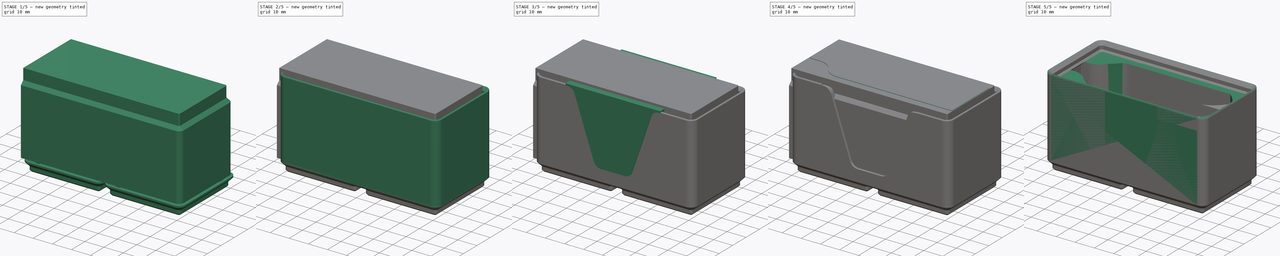
[diagram: build sequence overview — one tinted view per stage of 5, left to right]
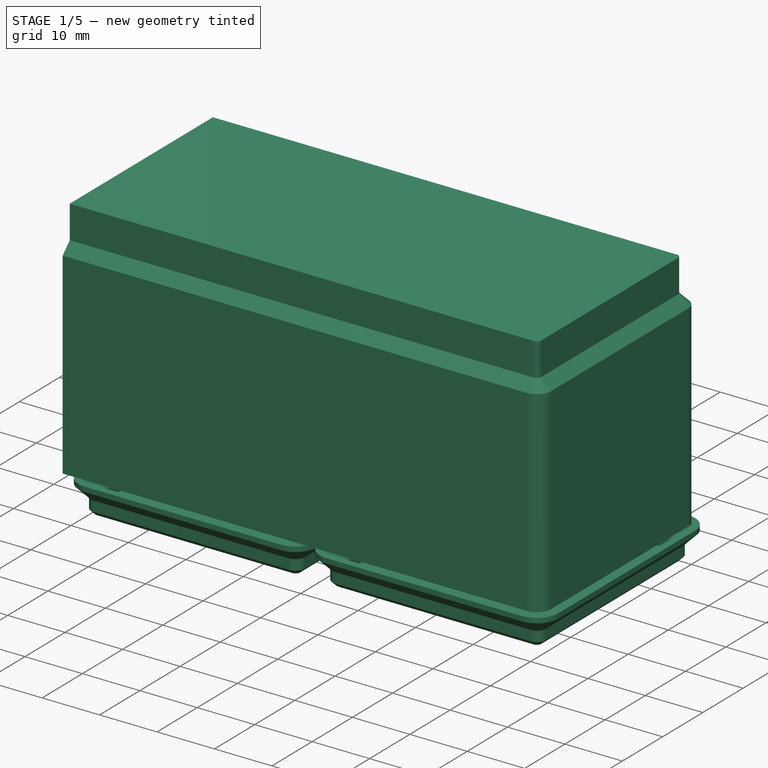
[diagram: stage 1 of 5 — iso view after this stage's code; geometry added in this stage tinted green]
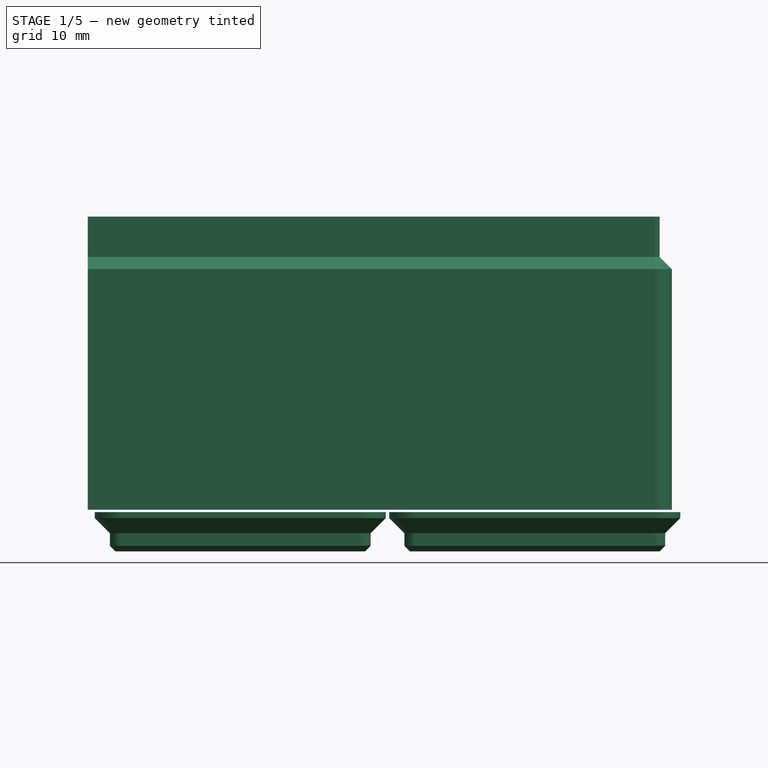
[diagram: stage 1 of 5 — front view after this stage's code; geometry added in this stage tinted green]
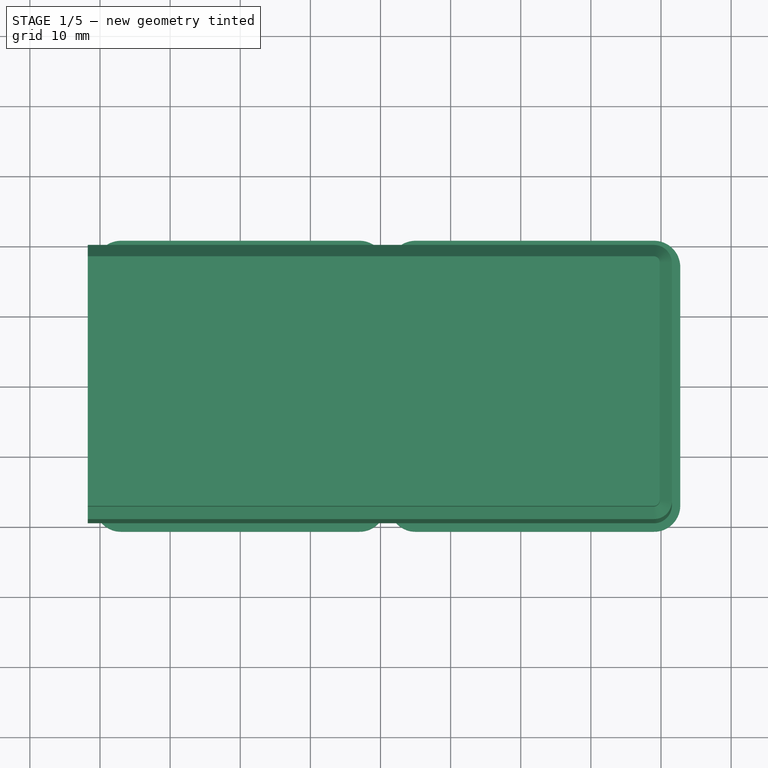
[diagram: stage 1 of 5 — top view after this stage's code; geometry added in this stage tinted green]
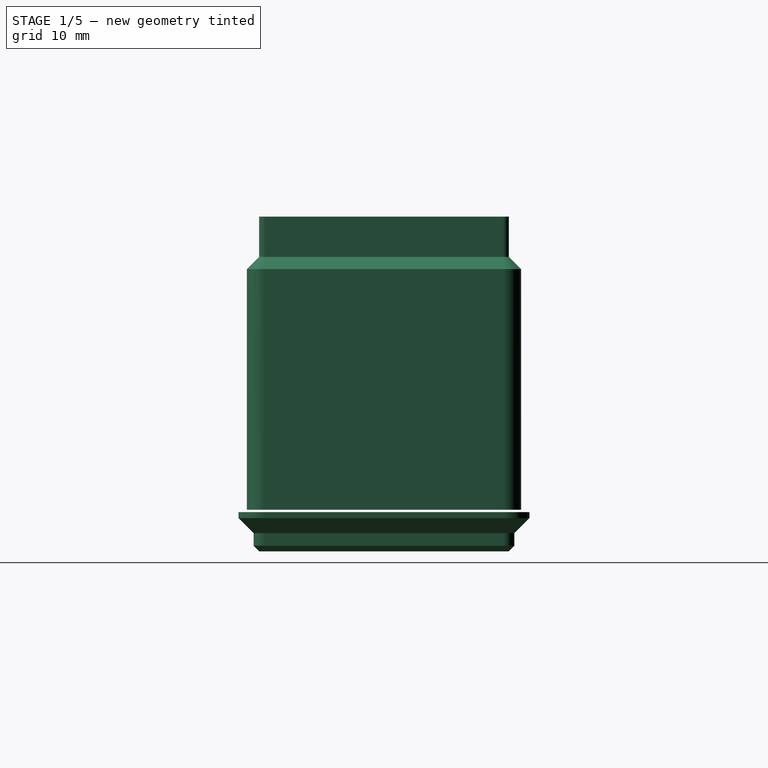
[diagram: stage 1 of 5 — right view after this stage's code; geometry added in this stage tinted green]
FCSTD DOCUMENT  (FreeCAD 2024.123R14555 (Git shallow))
Label: Gridfinity
License: All rights reserved
LicenseURL: http://en.wikipedia.org/wiki/All_rights_reserved
objects: PartDesign::SubShapeBinder×32, Sketcher::SketchObject×22, PartDesign::Body×22, App::DocumentObjectGroup×11, PartDesign::Boolean×11, PartDesign::LinearPattern×9, PartDesign::Pad×8, Part::SubShapeBinder×5, PartDesign::MultiTransform×4, PartDesign::AdditivePipe×2, PartDesign::AdditiveLoft×2, PartDesign::AdditiveBox×2, Spreadsheet::Sheet×1, PartDesign::Thickness×1
note: 209 computed .brp shape members not serialized (recipe doc carries the construction recipe); baked Part::Feature solids carry a one-line shape summary decoded from their .brp

FEATURE [PartDesign::Body] Body014  label="CompletedFilledBin"
  AutoGroupSolids = false
  ClaimAllChildren = false
  ExportMode = 0
  Group = -> [Boolean003]
  InvalidShape = false
  Origin = -> Origin014
  Tip = -> Boolean003
  TreeRank = 205
  ValidateShape = false
  _ExportChildren = -> [Boolean003]
  _GroupVersion = 1
FEATURE [Part::SubShapeBinder] Import004  label="Import004(BinBaseConnectorCutMasterSketch)"
  BindCopyOnChange = 0
  BindMode = 0
  ClaimChildren = false
  Context = -> Group009 [Body015.Import004.]
  EdgeTolerance = 1e-06
  FillStyle = 0
  Fuse = false
  InvalidShape = false
  MakeFace = false
  MergeEdges = true
  OffsetFill = false
  OffsetIntersection = false
  OffsetJoinType = 0
  OffsetOpenResult = false
  Outline = false
  PartialLoad = false
  Relative = true
  SplitEdges = false
  Support = -> [Sketch008]
  TightBound = false
  TreeRank = 224
  ValidateShape = false
  _Version = 8
FEATURE [Sketcher::SketchObject] Sketch013  label="Cut0475Sketch"
  ArcFitTolerance = 1e-06
  AttachmentOffset = pos=(0,0,5.95) rot=(0,0,1;0rad)
  AttachmentSupport = -> [XY_Plane014]
  ExternalBSplineMaxDegree = 5
  ExternalBSplineTolerance = 0.0001
  ExternalGeometry = -> [Import004]
  FullyConstrained = true
  InternalTolerance = 1e-06
  InvalidShape = false
  MakeInternals = false
  MapMode = 5
  Placement = pos=(0,0,5.95) rot=(0,0,1;0rad)
  Support = -> [XY_Plane014]
  TreeRank = 225
  ValidateShape = false
  expr: AttachmentOffset.Base.z = <<BinBaseConnectorMasterSketch>>.Placement.Base.z + <<Params>>.WallThickless
  expr: Constraints[13] = <<Params>>.WallThickless
  expr: Constraints[14] = <<Params>>.WallThickless
  sketch-geometry (6):
    g0: LineSegment StartX=-21.75 StartY=19.55 StartZ=0 EndX=59 EndY=19.55 EndZ=0
    g1: LineSegment StartX=61.55 StartY=17 StartZ=0 EndX=61.55 EndY=-17 EndZ=0
    g2: LineSegment StartX=59 StartY=-19.55 StartZ=0 EndX=-21.75 EndY=-19.55 EndZ=0
    g3: LineSegment StartX=-21.75 StartY=-19.55 StartZ=0 EndX=-21.75 EndY=19.55 EndZ=0
    g4: ArcOfCircle CenterX=59 CenterY=17 CenterZ=0 NormalX=0 NormalY=0 NormalZ=1 AngleXU=0 Radius=2.55 StartAngle=-9e-16 EndAngle=1.5708
    g5: ArcOfCircle CenterX=59 CenterY=-17 CenterZ=0 NormalX=0 NormalY=0 NormalZ=1 AngleXU=0 Radius=2.55 StartAngle=4.71239 EndAngle=6.28319
  constraints (16):
    c: Coincident(g2,g3)
    c: Coincident(g3,g0)
    c: Horizontal(g0)
    c: Horizontal(g2)
    c: Vertical(g1)
    c: Vertical(g3)
    c: Tangent(g0,g4) = 1.5708
    c: Tangent(g1,g4) = 1.5708
    c: Tangent(g1,g5) = 1.5708
    c: Tangent(g2,g5) = 1.5708
    c: Equal(g5,g4)
    c: Vertical(g5,g-4)
    c: Horizontal(g5,g-3)
    c: DistanceX(g1,g-3) = 1.2
    c: DistanceY(g0,g-5) = 1.2
    c: DistanceX(g0,g-6) = 1
FEATURE [Sketcher::SketchObject] Sketch014  label="Cut0475StraightUpSketch"
  ArcFitTolerance = 1e-06
  AttachmentOffset = pos=(0,0,40.25) rot=(0,0,1;0rad)
  AttachmentSupport = -> [XY_Plane014]
  ExternalBSplineMaxDegree = 5
  ExternalBSplineTolerance = 0.0001
  ExternalGeometry = -> [Import004]
  FullyConstrained = true
  InternalTolerance = 1e-06
  InvalidShape = false
  MakeInternals = false
  MapMode = 5
  Placement = pos=(0,0,40.25) rot=(0,0,1;0rad)
  Support = -> [XY_Plane014]
  TreeRank = 228
  ValidateShape = false
  expr: AttachmentOffset.Base.z = <<HalfProfileBinStackingLipOnXMasterSketch>>.Constraints.InnerWallMinHeight
  expr: Constraints[13] = <<Params>>.WallThickless
  expr: Constraints[14] = <<Params>>.WallThickless
  sketch-geometry (6):
    g0: LineSegment StartX=-21.75 StartY=19.55 StartZ=0 EndX=59 EndY=19.55 EndZ=0
    g1: LineSegment StartX=61.55 StartY=17 StartZ=0 EndX=61.55 EndY=-17 EndZ=0
    g2: LineSegment StartX=59 StartY=-19.55 StartZ=0 EndX=-21.75 EndY=-19.55 EndZ=0
    g3: LineSegment StartX=-21.75 StartY=-19.55 StartZ=0 EndX=-21.75 EndY=19.55 EndZ=0
    g4: ArcOfCircle CenterX=59 CenterY=17 CenterZ=0 NormalX=0 NormalY=0 NormalZ=1 AngleXU=0 Radius=2.55 StartAngle=3e-16 EndAngle=1.5708
    g5: ArcOfCircle CenterX=59 CenterY=-17 CenterZ=0 NormalX=0 NormalY=0 NormalZ=1 AngleXU=0 Radius=2.55 StartAngle=4.71239 EndAngle=6.28319
  constraints (16):
    c: Coincident(g2,g3)
    c: Coincident(g3,g0)
    c: Horizontal(g0)
    c: Horizontal(g2)
    c: Vertical(g1)
    c: Vertical(g3)
    c: Tangent(g0,g4) = 1.5708
    c: Tangent(g1,g4) = 1.5708
    c: Tangent(g1,g5) = 1.5708
    c: Tangent(g2,g5) = 1.5708
    c: Equal(g5,g4)
    c: Vertical(g5,g-4)
    c: Horizontal(g5,g-3)
    c: DistanceX(g1,g-3) = 1.2
    c: DistanceY(g0,g-5) = 1.2
    c: DistanceX(g0,g-6) = 1
FEATURE [Part::SubShapeBinder] Import005  label="Import005(HalfProfileBinStackingLipOnXMasterSketch)"
  BindCopyOnChange = 0
  BindMode = 0
  ClaimChildren = false
  Context = -> Group [Group010.Body015.Import005.]
  EdgeTolerance = 1e-06
  FillStyle = 0
  Fuse = false
  InvalidShape = false
  MakeFace = false
  MergeEdges = true
  OffsetFill = false
  OffsetIntersection = false
  OffsetJoinType = 0
  OffsetOpenResult = false
  Outline = false
  PartialLoad = false
  Relative = true
  SplitEdges = false
  Support = -> [Sketch003]
  TightBound = false
  TreeRank = 231
  ValidateShape = false
  _Version = 8
FEATURE [Sketcher::SketchObject] Sketch015  label="CutTopSketch"
  ArcFitTolerance = 1e-06
  AttachmentOffset = pos=(0,0,42) rot=(0,0,1;0rad)
  AttachmentSupport = -> [XY_Plane014]
  ExternalBSplineMaxDegree = 5
  ExternalBSplineTolerance = 0.0001
  ExternalGeometry = -> [Import004,Import005]
  FullyConstrained = true
  InternalTolerance = 1e-06
  InvalidShape = false
  MakeInternals = false
  MapMode = 5
  Placement = pos=(0,0,42) rot=(0,0,1;0rad)
  Support = -> [XY_Plane014]
  TreeRank = 230
  ValidateShape = false
  expr: AttachmentOffset.Base.z = <<Params>>.HeightUnits_MM
  sketch-geometry (6):
    g0: LineSegment StartX=-21.75 StartY=17.8 StartZ=0 EndX=59 EndY=17.8 EndZ=0
    g1: LineSegment StartX=59.8 StartY=17 StartZ=0 EndX=59.8 EndY=-17 EndZ=0
    g2: LineSegment StartX=59 StartY=-17.8 StartZ=0 EndX=-21.75 EndY=-17.8 EndZ=0
    g3: LineSegment StartX=-21.75 StartY=-17.8 StartZ=0 EndX=-21.75 EndY=17.8 EndZ=0
    g4: ArcOfCircle CenterX=59 CenterY=17 CenterZ=0 NormalX=0 NormalY=0 NormalZ=1 AngleXU=0 Radius=0.8 StartAngle=0 EndAngle=1.5708
    g5: ArcOfCircle CenterX=59 CenterY=-17 CenterZ=0 NormalX=0 NormalY=0 NormalZ=1 AngleXU=0 Radius=0.8 StartAngle=4.71239 EndAngle=6.28319
  constraints (16):
    c: Coincident(g2,g3)
    c: Coincident(g3,g0)
    c: Horizontal(g0)
    c: Horizontal(g2)
    c: Vertical(g1)
    c: Vertical(g3)
    c: Tangent(g0,g4) = 1.5708
    c: Tangent(g1,g4) = 1.5708
    c: Tangent(g1,g5) = 1.5708
    c: Tangent(g2,g5) = 1.5708
    c: Equal(g5,g4)
    c: Vertical(g5,g-4)
    c: Horizontal(g5,g-3)
    c: DistanceX(g0,g-5) = 1
    c: PointOnObject(g-6,g1)
    c: Horizontal(g-7,g4)
FEATURE [Sketcher::SketchObject] Sketch017  label="CutTopStraightUpSketch"
  ArcFitTolerance = 1e-06
  AttachmentOffset = pos=(0,0,47.75) rot=(0,0,1;0rad)
  AttachmentSupport = -> [XY_Plane014]
  ExternalBSplineMaxDegree = 5
  ExternalBSplineTolerance = 0.0001
  ExternalGeometry = -> [Import004,Import005]
  FullyConstrained = true
  InternalTolerance = 1e-06
  InvalidShape = false
  MakeInternals = false
  MapMode = 5
  Placement = pos=(0,0,47.75) rot=(0,0,1;0rad)
  Support = -> [XY_Plane014]
  TreeRank = 244
  ValidateShape = false
  expr: AttachmentOffset.Base.z = <<Params>>.HeightUnits_MM + 0.8 + 1.8 + 2.15 + 1
  sketch-geometry (6):
    g0: LineSegment StartX=-21.75 StartY=17.8 StartZ=0 EndX=59 EndY=17.8 EndZ=0
    g1: LineSegment StartX=59.8 StartY=17 StartZ=0 EndX=59.8 EndY=-17 EndZ=0
    g2: LineSegment StartX=59 StartY=-17.8 StartZ=0 EndX=-21.75 EndY=-17.8 EndZ=0
    g3: LineSegment StartX=-21.75 StartY=-17.8 StartZ=0 EndX=-21.75 EndY=17.8 EndZ=0
    g4: ArcOfCircle CenterX=59 CenterY=17 CenterZ=0 NormalX=0 NormalY=0 NormalZ=1 AngleXU=0 Radius=0.8 StartAngle=1.2e-15 EndAngle=1.5708
    g5: ArcOfCircle CenterX=59 CenterY=-17 CenterZ=0 NormalX=0 NormalY=0 NormalZ=1 AngleXU=0 Radius=0.8 StartAngle=4.71239 EndAngle=6.28319
  constraints (16):
    c: Coincident(g2,g3)
    c: Coincident(g3,g0)
    c: Horizontal(g0)
    c: Horizontal(g2)
    c: Vertical(g1)
    c: Vertical(g3)
    c: Tangent(g0,g4) = 1.5708
    c: Tangent(g1,g4) = 1.5708
    c: Tangent(g1,g5) = 1.5708
    c: Tangent(g2,g5) = 1.5708
    c: Equal(g5,g4)
    c: Vertical(g5,g-4)
    c: Horizontal(g5,g-3)
    c: DistanceX(g0,g-5) = 1
    c: PointOnObject(g-6,g1)
    c: Horizontal(g4,g-7)
FEATURE [PartDesign::AdditiveLoft] Loft001
  AddSubType = 0
  ClaimChildren = false
  Closed = false
  Fit = 0
  FitJoin = 0
  InnerFit = 0
  InnerFitJoin = 0
  InvalidShape = false
  Linearize = true
  MaxDegree = 5
  NewSolid = false
  Profile = -> Sketch013
  Refine = true
  Ruled = true
  Sections = -> [Sketch014,Sketch015,Sketch017]
  SplitProfile = false
  Suppress = false
  TreeRank = 232
  ValidateShape = false
  _ProfileBasedVersion = 1
FEATURE [PartDesign::Body] Body024  label="UVShapedOpenBin"
  AutoGroupSolids = false
  ClaimAllChildren = false
  ExportMode = 0
  Group = -> [Boolean008]
  InvalidShape = false
  Origin = -> Origin024
  Tip = -> Boolean008
  TreeRank = 355
  ValidateShape = false
  _ExportChildren = -> [Boolean008]
  _GroupVersion = 1
FEATURE [PartDesign::AdditiveBox] Box
  AddSubType = 0
  AttacherType = Attacher::AttachEngine3D
  AttachmentOffset = pos=(-21,-21,0) rot=(0,0,1;0rad)
  AttachmentSupport = -> [XY_Plane]
  Height = 10
  InvalidShape = false
  Length = 42
  MapMode = 5
  NewSolid = false
  Placement = pos=(-21,-21,0) rot=(0,0,1;0rad)
  Refine = true
  Support = -> [XY_Plane]
  Suppress = false
  TreeRank = 372
  ValidateShape = false
  Width = 42
  expr: Height = 10
FEATURE [PartDesign::SubShapeBinder] Binder006  label="Binder006(BinBasePartSingleFilled)"
  BindCopyOnChange = 0
  BindMode = 0
  ClaimChildren = false
  Context = -> Group [Group003.Body.Binder006.]
  EdgeTolerance = 1e-06
  FillStyle = 0
  Fuse = false
  InvalidShape = false
  MakeFace = true
  MergeEdges = true
  OffsetFill = false
  OffsetIntersection = false
  OffsetJoinType = 0
  OffsetOpenResult = false
  Outline = false
  PartialLoad = false
  Relative = true
  SplitEdges = false
  Support = -> [Body025]
  TightBound = false
  TreeRank = 373
  ValidateShape = false
  _Version = 8
FEATURE [PartDesign::SubShapeBinder] Reference028  label="Reference028(Box)"
  BindCopyOnChange = 0
  BindMode = 0
  ClaimChildren = false
  Context = -> Group [Group003.Body.Boolean009.Reference028.]
  EdgeTolerance = 1e-06
  FillStyle = 0
  Fuse = false
  InvalidShape = false
  MakeFace = true
  MergeEdges = true
  OffsetFill = false
  OffsetIntersection = false
  OffsetJoinType = 0
  OffsetOpenResult = false
  Outline = false
  PartialLoad = false
  Relative = true
  SplitEdges = false
  Support = -> [Box]
  TightBound = false
  TreeRank = 377
  ValidateShape = false
  _Version = 8
FEATURE [PartDesign::SubShapeBinder] Reference029  label="Reference029(*BinBasePartSingleFilled)"
  BindCopyOnChange = 0
  BindMode = 0
  ClaimChildren = false
  Context = -> Group [Group003.Body.Boolean009.Reference029.]
  EdgeTolerance = 1e-06
  FillStyle = 0
  Fuse = false
  InvalidShape = false
  MakeFace = true
  MergeEdges = true
  OffsetFill = false
  OffsetIntersection = false
  OffsetJoinType = 0
  OffsetOpenResult = false
  Outline = false
  PartialLoad = false
  Relative = true
  SplitEdges = false
  Support = -> [Binder006]
  TightBound = false
  TreeRank = 378
  ValidateShape = false
  _Version = 8
FEATURE [PartDesign::Boolean] Boolean009
  BaseFeature = -> Box
  ClaimAllChildren = false
  ExportMode = 0
  Group = -> [Reference028,Reference029]
  InvalidShape = false
  NewSolid = false
  Refine = true
  Suppress = false
  TreeRank = 374
  Type = 2
  ValidateShape = false
  _ExportChildren = -> [Reference028,Reference029]
  _GroupVersion = 1
FEATURE [PartDesign::SubShapeBinder] Import001  label="Import001(PathBinBaseMasterSketch)"
  BindCopyOnChange = 0
  BindMode = 0
  ClaimChildren = false
  Context = -> Group [Group003.Body012.Import001.]
  EdgeTolerance = 1e-06
  FillStyle = 0
  Fuse = false
  InvalidShape = false
  MakeFace = false
  MergeEdges = true
  OffsetFill = false
  OffsetIntersection = false
  OffsetJoinType = 0
  OffsetOpenResult = false
  Outline = false
  PartialLoad = false
  Relative = true
  SplitEdges = false
  Support = -> [Sketch001]
  TightBound = false
  TreeRank = 380
  ValidateShape = false
  _Version = 8
FEATURE [Sketcher::SketchObject] Sketch009  label="PathBin080Sketch"
  ArcFitTolerance = 1e-06
  AttachmentOffset = pos=(0,0,0.8) rot=(0,0,1;0rad)
  AttachmentSupport = -> [XY_Plane024]
  ExternalBSplineMaxDegree = 5
  ExternalBSplineTolerance = 0.0001
  ExternalGeometry = -> [Import001]
  FullyConstrained = true
  InternalTolerance = 1e-06
  InvalidShape = false
  MakeInternals = false
  MapMode = 5
  Placement = pos=(0,0,0.8) rot=(0,0,1;0rad)
  Support = -> [XY_Plane024]
  TreeRank = 381
  ValidateShape = false
  sketch-geometry (10):
    g0: ArcOfCircle CenterX=-17 CenterY=17 CenterZ=0 NormalX=0 NormalY=0 NormalZ=1 AngleXU=0 Radius=1.6 StartAngle=1.5708 EndAngle=3.14159
    g1: LineSegment StartX=-17 StartY=18.6 StartZ=0 EndX=17 EndY=18.6 EndZ=0
    g2: ArcOfCircle CenterX=17 CenterY=17 CenterZ=0 NormalX=0 NormalY=0 NormalZ=1 AngleXU=0 Radius=1.6 StartAngle=0 EndAngle=1.5708
    g3: LineSegment StartX=18.6 StartY=17 StartZ=0 EndX=18.6 EndY=-17 EndZ=0
    g4: ArcOfCircle CenterX=17 CenterY=-17 CenterZ=0 NormalX=0 NormalY=0 NormalZ=1 AngleXU=0 Radius=1.6 StartAngle=4.71239 EndAngle=6.28319
    g5: LineSegment StartX=17 StartY=-18.6 StartZ=0 EndX=-17 EndY=-18.6 EndZ=0
    g6: ArcOfCircle CenterX=-17 CenterY=-17 CenterZ=0 NormalX=0 NormalY=0 NormalZ=1 AngleXU=0 Radius=1.6 StartAngle=3.14159 EndAngle=4.71239
    g7: LineSegment StartX=-18.6 StartY=-17 StartZ=0 EndX=-18.6 EndY=17 EndZ=0
    g8: GeomPoint [constr] X=-18.6 Y=18.6 Z=0
    g9: GeomPoint [constr] X=18.6 Y=-18.6 Z=0
  constraints (23):
    c: Tangent(g0,g1) = 1.5708
    c: Tangent(g1,g2) = 1.5708
    c: Tangent(g2,g3) = 1.5708
    c: Tangent(g3,g4) = 1.5708
    c: Tangent(g4,g5) = 1.5708
    c: Tangent(g5,g6) = 1.5708
    c: Tangent(g6,g7) = 1.5708
    c: Tangent(g7,g0) = 1.5708
    c: Horizontal(g1)
    c: Horizontal(g5)
    c: Vertical(g3)
    c: Vertical(g7)
    c: Equal(g0,g2)
    c: Equal(g2,g4)
    c: Equal(g4,g6)
    c: PointOnObject(g8,g1)
    c: PointOnObject(g8,g7)
    c: PointOnObject(g9,g3)
    c: PointOnObject(g9,g5)
    c: Symmetric(g0,g4,g-1)
    c: Vertical(g2,g-4)
    c: Horizontal(g2,g-3)
    c: DistanceX(g-3,g2) = 0.8
FEATURE [Sketcher::SketchObject] Sketch010  label="PathBin260Sketch"
  ArcFitTolerance = 1e-06
  AttachmentOffset = pos=(0,0,2.6) rot=(0,0,1;0rad)
  AttachmentSupport = -> [XY_Plane024]
  ExternalBSplineMaxDegree = 5
  ExternalBSplineTolerance = 0.0001
  ExternalGeometry = -> [Import001]
  FullyConstrained = true
  InternalTolerance = 1e-06
  InvalidShape = false
  MakeInternals = false
  MapMode = 5
  Placement = pos=(0,0,2.6) rot=(0,0,1;0rad)
  Support = -> [XY_Plane024]
  TreeRank = 382
  ValidateShape = false
  sketch-geometry (10):
    g0: ArcOfCircle CenterX=-17 CenterY=17 CenterZ=0 NormalX=0 NormalY=0 NormalZ=1 AngleXU=0 Radius=1.6 StartAngle=1.5708 EndAngle=3.14159
    g1: LineSegment StartX=-17 StartY=18.6 StartZ=0 EndX=17 EndY=18.6 EndZ=0
    g2: ArcOfCircle CenterX=17 CenterY=17 CenterZ=0 NormalX=0 NormalY=0 NormalZ=1 AngleXU=0 Radius=1.6 StartAngle=0 EndAngle=1.5708
    g3: LineSegment StartX=18.6 StartY=17 StartZ=0 EndX=18.6 EndY=-17 EndZ=0
    g4: ArcOfCircle CenterX=17 CenterY=-17 CenterZ=0 NormalX=0 NormalY=0 NormalZ=1 AngleXU=0 Radius=1.6 StartAngle=4.71239 EndAngle=6.28319
    g5: LineSegment StartX=17 StartY=-18.6 StartZ=0 EndX=-17 EndY=-18.6 EndZ=0
    g6: ArcOfCircle CenterX=-17 CenterY=-17 CenterZ=0 NormalX=0 NormalY=0 NormalZ=1 AngleXU=0 Radius=1.6 StartAngle=3.14159 EndAngle=4.71239
    g7: LineSegment StartX=-18.6 StartY=-17 StartZ=0 EndX=-18.6 EndY=17 EndZ=0
    g8: GeomPoint [constr] X=-18.6 Y=18.6 Z=0
    g9: GeomPoint [constr] X=18.6 Y=-18.6 Z=0
  constraints (23):
    c: Tangent(g0,g1) = 1.5708
    c: Tangent(g1,g2) = 1.5708
    c: Tangent(g2,g3) = 1.5708
    c: Tangent(g3,g4) = 1.5708
    c: Tangent(g4,g5) = 1.5708
    c: Tangent(g5,g6) = 1.5708
    c: Tangent(g6,g7) = 1.5708
    c: Tangent(g7,g0) = 1.5708
    c: Horizontal(g1)
    c: Horizontal(g5)
    c: Vertical(g3)
    c: Vertical(g7)
    c: Equal(g0,g2)
    c: Equal(g2,g4)
    c: Equal(g4,g6)
    c: PointOnObject(g8,g1)
    c: PointOnObject(g8,g7)
    c: PointOnObject(g9,g3)
    c: PointOnObject(g9,g5)
    c: Symmetric(g0,g4,g-1)
    c: Vertical(g2,g-4)
    c: Horizontal(g2,g-3)
    c: DistanceX(g-3,g2) = 0.8
FEATURE [Sketcher::SketchObject] Sketch011  label="PathBin475Sketch"
  ArcFitTolerance = 1e-06
  AttachmentOffset = pos=(0,0,4.75) rot=(0,0,1;0rad)
  AttachmentSupport = -> [XY_Plane024]
  ExternalBSplineMaxDegree = 5
  ExternalBSplineTolerance = 0.0001
  ExternalGeometry = -> [Import001]
  FullyConstrained = true
  InternalTolerance = 1e-06
  InvalidShape = false
  MakeInternals = false
  MapMode = 5
  Placement = pos=(0,0,4.75) rot=(0,0,1;0rad)
  Support = -> [XY_Plane024]
  TreeRank = 383
  ValidateShape = false
  sketch-geometry (10):
    g0: ArcOfCircle CenterX=-17 CenterY=17 CenterZ=0 NormalX=0 NormalY=0 NormalZ=1 AngleXU=0 Radius=3.75 StartAngle=1.5708 EndAngle=3.14159
    g1: LineSegment StartX=-17 StartY=20.75 StartZ=0 EndX=17 EndY=20.75 EndZ=0
    g2: ArcOfCircle CenterX=17 CenterY=17 CenterZ=0 NormalX=0 NormalY=0 NormalZ=1 AngleXU=0 Radius=3.75 StartAngle=3e-16 EndAngle=1.5708
    g3: LineSegment StartX=20.75 StartY=17 StartZ=0 EndX=20.75 EndY=-17 EndZ=0
    g4: ArcOfCircle CenterX=17 CenterY=-17 CenterZ=0 NormalX=0 NormalY=0 NormalZ=1 AngleXU=0 Radius=3.75 StartAngle=4.71239 EndAngle=6.28319
    g5: LineSegment StartX=17 StartY=-20.75 StartZ=0 EndX=-17 EndY=-20.75 EndZ=0
    g6: ArcOfCircle CenterX=-17 CenterY=-17 CenterZ=0 NormalX=0 NormalY=0 NormalZ=1 AngleXU=0 Radius=3.75 StartAngle=3.14159 EndAngle=4.71239
    g7: LineSegment StartX=-20.75 StartY=-17 StartZ=0 EndX=-20.75 EndY=17 EndZ=0
    g8: GeomPoint [constr] X=-20.75 Y=20.75 Z=0
    g9: GeomPoint [constr] X=20.75 Y=-20.75 Z=0
  constraints (23):
    c: Tangent(g0,g1) = 1.5708
    c: Tangent(g1,g2) = 1.5708
    c: Tangent(g2,g3) = 1.5708
    c: Tangent(g3,g4) = 1.5708
    c: Tangent(g4,g5) = 1.5708
    c: Tangent(g5,g6) = 1.5708
    c: Tangent(g6,g7) = 1.5708
    c: Tangent(g7,g0) = 1.5708
    c: Horizontal(g1)
    c: Horizontal(g5)
    c: Vertical(g3)
    c: Vertical(g7)
    c: Equal(g0,g2)
    c: Equal(g2,g4)
    c: Equal(g4,g6)
    c: PointOnObject(g8,g1)
    c: PointOnObject(g8,g7)
    c: PointOnObject(g9,g3)
    c: PointOnObject(g9,g5)
    c: Symmetric(g0,g4,g-1)
    c: Vertical(g2,g-4)
    c: Horizontal(g2,g-3)
    c: DistanceX(g-3,g2) = 2.95
FEATURE [Sketcher::SketchObject] Sketch023  label="PathBin475UpperSketch"
  ArcFitTolerance = 1e-06
  AttachmentOffset = pos=(0,0,5.59853) rot=(0,0,1;0rad)
  AttachmentSupport = -> [XY_Plane024]
  ExternalBSplineMaxDegree = 5
  ExternalBSplineTolerance = 0.0001
  ExternalGeometry = -> [Import001]
  FullyConstrained = true
  InternalTolerance = 1e-06
  InvalidShape = false
  MakeInternals = false
  MapMode = 5
  Placement = pos=(0,0,5.59853) rot=(0,0,1;0rad)
  Support = -> [XY_Plane024]
  TreeRank = 384
  ValidateShape = false
  expr: AttachmentOffset.Base.z = 4.75 mm + <<Params>>.WallThickness45Degree
  sketch-geometry (10):
    g0: ArcOfCircle CenterX=-17 CenterY=17 CenterZ=0 NormalX=0 NormalY=0 NormalZ=1 AngleXU=0 Radius=3.75 StartAngle=1.5708 EndAngle=3.14159
    g1: LineSegment StartX=-17 StartY=20.75 StartZ=0 EndX=17 EndY=20.75 EndZ=0
    g2: ArcOfCircle CenterX=17 CenterY=17 CenterZ=0 NormalX=0 NormalY=0 NormalZ=1 AngleXU=0 Radius=3.75 StartAngle=3e-16 EndAngle=1.5708
    g3: LineSegment StartX=20.75 StartY=17 StartZ=0 EndX=20.75 EndY=-17 EndZ=0
    g4: ArcOfCircle CenterX=17 CenterY=-17 CenterZ=0 NormalX=0 NormalY=0 NormalZ=1 AngleXU=0 Radius=3.75 StartAngle=4.71239 EndAngle=6.28319
    g5: LineSegment StartX=17 StartY=-20.75 StartZ=0 EndX=-17 EndY=-20.75 EndZ=0
    g6: ArcOfCircle CenterX=-17 CenterY=-17 CenterZ=0 NormalX=0 NormalY=0 NormalZ=1 AngleXU=0 Radius=3.75 StartAngle=3.14159 EndAngle=4.71239
    g7: LineSegment StartX=-20.75 StartY=-17 StartZ=0 EndX=-20.75 EndY=17 EndZ=0
    g8: GeomPoint [constr] X=-20.75 Y=20.75 Z=0
    g9: GeomPoint [constr] X=20.75 Y=-20.75 Z=0
  constraints (23):
    c: Tangent(g0,g1) = 1.5708
    c: Tangent(g1,g2) = 1.5708
    c: Tangent(g2,g3) = 1.5708
    c: Tangent(g3,g4) = 1.5708
    c: Tangent(g4,g5) = 1.5708
    c: Tangent(g5,g6) = 1.5708
    c: Tangent(g6,g7) = 1.5708
    c: Tangent(g7,g0) = 1.5708
    c: Horizontal(g1)
    c: Horizontal(g5)
    c: Vertical(g3)
    c: Vertical(g7)
    c: Equal(g0,g2)
    c: Equal(g2,g4)
    c: Equal(g4,g6)
    c: PointOnObject(g8,g1)
    c: PointOnObject(g8,g7)
    c: PointOnObject(g9,g3)
    c: PointOnObject(g9,g5)
    c: Symmetric(g0,g4,g-1)
    c: Vertical(g2,g-4)
    c: Horizontal(g2,g-3)
    c: DistanceX(g-3,g2) = 2.95
FEATURE [PartDesign::AdditiveLoft] Loft
  AddSubType = 0
  ClaimChildren = false
  Closed = false
  Fit = 0
  FitJoin = 0
  InnerFit = 0
  InnerFitJoin = 0
  InvalidShape = false
  Linearize = true
  MaxDegree = 5
  NewSolid = false
  Profile = -> Import001
  Refine = true
  Ruled = true
  Sections = -> [Sketch009,Sketch010,Sketch011,Sketch023]
  SplitProfile = false
  Suppress = false
  TreeRank = 177
  ValidateShape = false
  _ProfileBasedVersion = 1
FEATURE [PartDesign::Body] Body012  label="BinBaseFilledPart"
  AutoGroupSolids = false
  ClaimAllChildren = false
  ExportMode = 0
  Group = -> [Box001,Binder007,Boolean010,MultiTransform,LinearPattern,LinearPattern011]
  InvalidShape = false
  Origin = -> Origin012
  Tip = -> MultiTransform
  TreeRank = 159
  ValidateShape = false
  _ExportChildren = -> [Box001,Binder007,Boolean010,MultiTransform]
  _GroupVersion = 1
FEATURE [PartDesign::Thickness] Thickness
  AddSubType = 0
  Base = -> Boolean009 [Face27]
  BaseFeature = -> Boolean009
  Intersection = false
  InvalidShape = false
  Join = 0
  MakeOffset = false
  Mode = 0
  NewSolid = false
  Refine = true
  Reversed = true
  SupportTransform = false
  Suppress = false
  TreeRank = 399
  ValidateShape = false
  Value = 1.2
  expr: Value = <<Params>>.WallThickless
FEATURE [PartDesign::LinearPattern] LinearPattern012
  AddSubType = 0
  CopyShape = false
  Direction = -> X_Axis
  InvalidShape = false
  Length = 42
  NewSolid = false
  Occurrences = 2
  ParallelTransform = true
  Refine = true
  SubTransform = true
  Suppress = false
  TreeRank = 401
  ValidateShape = false
  _Version = 3
  expr: Length = (<<Params>>.ModuleSizeX - 1) * 42
  expr: Occurrences = <<Params>>.ModuleSizeX
FEATURE [PartDesign::LinearPattern] LinearPattern013
  AddSubType = 0
  CopyShape = false
  Direction = -> Y_Axis
  InvalidShape = false
  Length = 1
  NewSolid = false
  Occurrences = 1
  ParallelTransform = true
  Refine = true
  SubTransform = true
  Suppress = false
  TreeRank = 402
  ValidateShape = false
  _Version = 3
  expr: Length = max(1, (<<Params>>.ModuleSizeY - 1) * 42)
  expr: Occurrences = <<Params>>.ModuleSizeY
FEATURE [PartDesign::MultiTransform] MultiTransform003
  AddSubType = 0
  BaseFeature = -> Thickness
  CopyShape = false
  InvalidShape = false
  NewSolid = false
  OriginalSubs = -> [Thickness]
  Originals = -> [Thickness]
  ParallelTransform = true
  Refine = true
  SubTransform = false
  Suppress = false
  Transformations = -> [LinearPattern012,LinearPattern013]
  TreeRank = 400
  ValidateShape = false
  _Version = 3
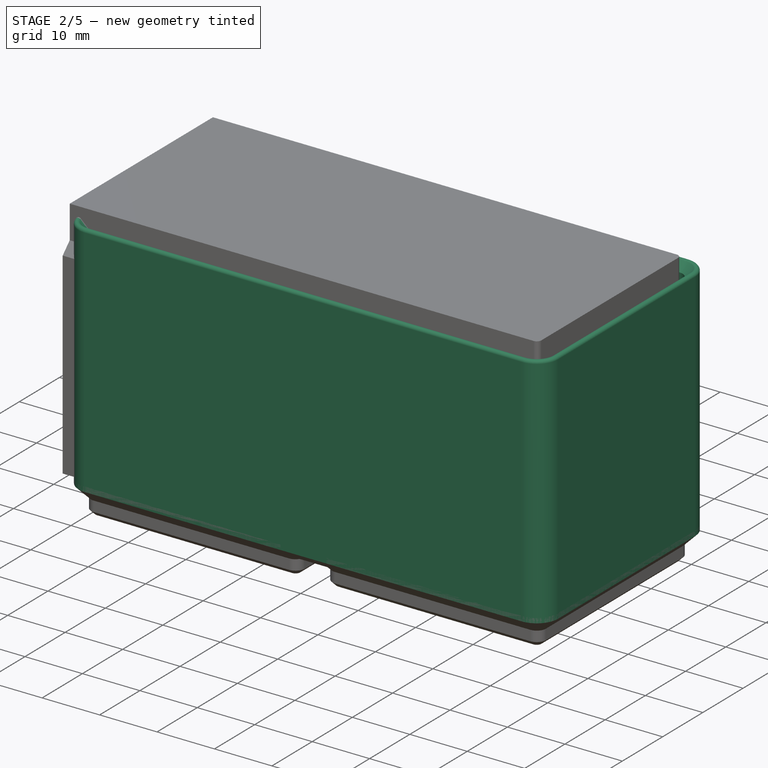
[diagram: stage 2 of 5 — iso view after this stage's code; geometry added in this stage tinted green]
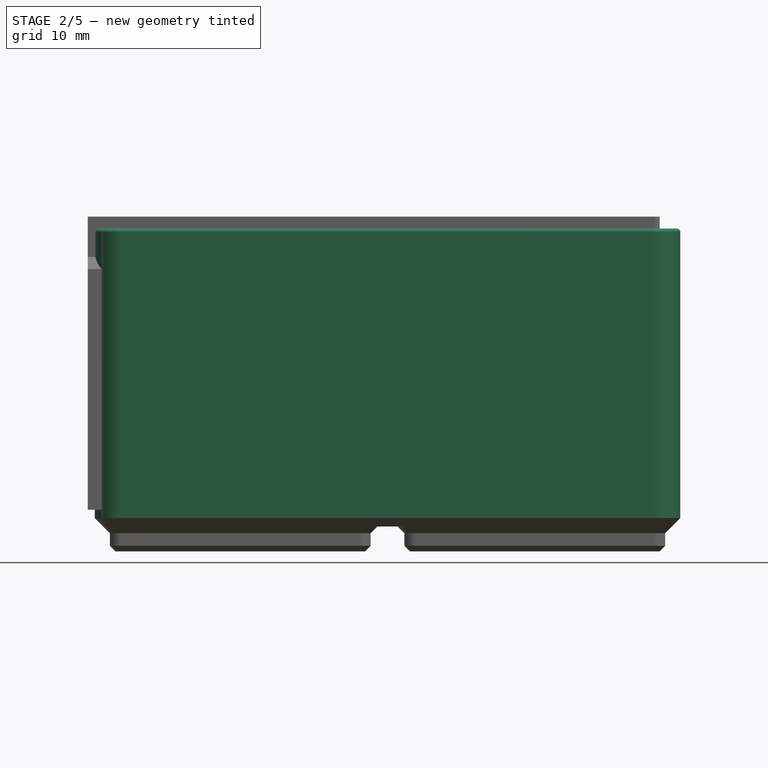
[diagram: stage 2 of 5 — front view after this stage's code; geometry added in this stage tinted green]
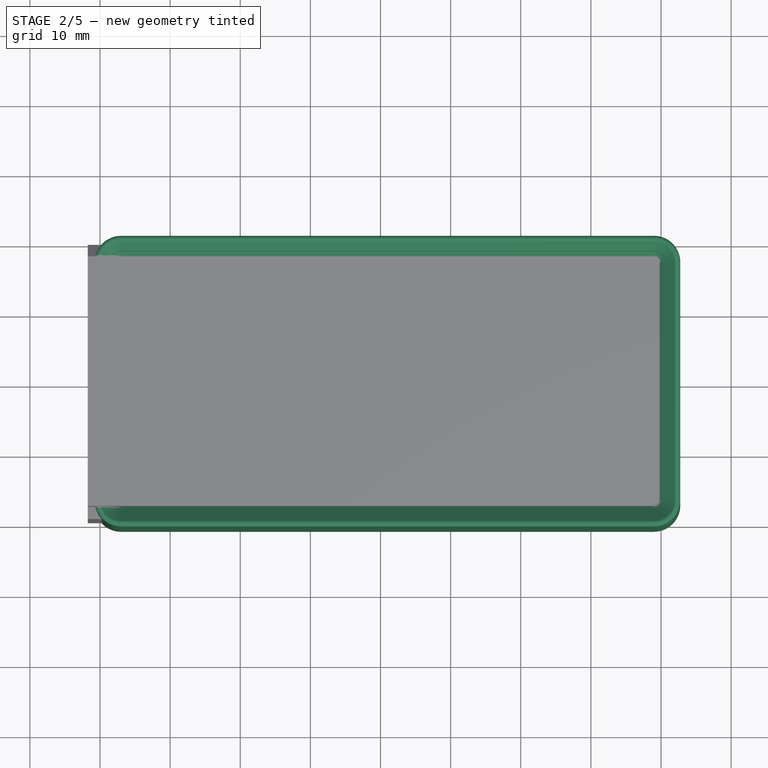
[diagram: stage 2 of 5 — top view after this stage's code; geometry added in this stage tinted green]
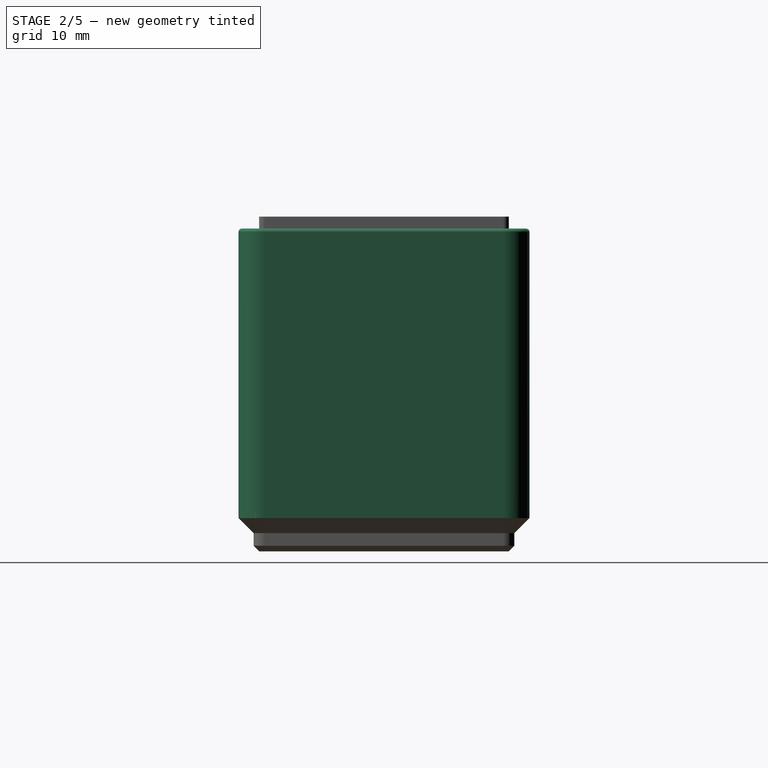
[diagram: stage 2 of 5 — right view after this stage's code; geometry added in this stage tinted green]
FEATURE [Sketcher::SketchObject] Sketch  label="HalfProfileBinBaseMasterSketch"
  ArcFitTolerance = 0
  ExternalBSplineMaxDegree = 0
  ExternalBSplineTolerance = 0
  FullyConstrained = true
  InternalTolerance = 1e-06
  InvalidShape = false
  MakeInternals = false
  MapMode = 5
  Placement = pos=(0,0,0) rot=(1,0,0;1.5708rad)
  TreeRank = 0
  ValidateShape = false
  sketch-geometry (3):
    g0: LineSegment StartX=17.8 StartY=0 StartZ=0 EndX=18.6 EndY=0.8 EndZ=0
    g1: LineSegment StartX=18.6 StartY=0.8 StartZ=0 EndX=18.6 EndY=2.6 EndZ=0
    g2: LineSegment StartX=18.6 StartY=2.6 StartZ=0 EndX=20.75 EndY=4.75 EndZ=0
  constraints (11):
    c: PointOnObject(g0,g-1)
    c: Coincident(g0,g1)
    c: Vertical(g1)
    c: Coincident(g1,g2)
    c: DistanceX(g-1,g0) = 17.8
    c: DistanceY(g0,g0) = 0.8
    c: DistanceY(g1,g1) = 1.8
    c: DistanceY(g2,g2) = 2.15
    c: Angle(g0) = 0.785398
    c: Angle(g2) = 0.785398
    c: DistanceX(g2) = 20.75
FEATURE [Sketcher::SketchObject] Sketch001  label="PathBinBaseMasterSketch"
  ArcFitTolerance = 0
  ExternalBSplineMaxDegree = 0
  ExternalBSplineTolerance = 0
  FullyConstrained = true
  InternalTolerance = 1e-06
  InvalidShape = false
  MakeInternals = false
  TreeRank = 0
  ValidateShape = false
  sketch-geometry (10):
    g0: ArcOfCircle CenterX=-17 CenterY=17 CenterZ=0 NormalX=0 NormalY=0 NormalZ=1 AngleXU=0 Radius=0.8 StartAngle=1.5708 EndAngle=3.14159
    g1: LineSegment StartX=-17 StartY=17.8 StartZ=0 EndX=17 EndY=17.8 EndZ=0
    g2: ArcOfCircle CenterX=17 CenterY=17 CenterZ=0 NormalX=0 NormalY=0 NormalZ=1 AngleXU=0 Radius=0.8 StartAngle=-2.7e-15 EndAngle=1.5708
    g3: LineSegment StartX=17.8 StartY=17 StartZ=0 EndX=17.8 EndY=-17 EndZ=0
    g4: ArcOfCircle CenterX=17 CenterY=-17 CenterZ=0 NormalX=0 NormalY=0 NormalZ=1 AngleXU=0 Radius=0.8 StartAngle=4.71239 EndAngle=6.28319
    g5: LineSegment StartX=17 StartY=-17.8 StartZ=0 EndX=-17 EndY=-17.8 EndZ=0
    g6: ArcOfCircle CenterX=-17 CenterY=-17 CenterZ=0 NormalX=0 NormalY=0 NormalZ=1 AngleXU=0 Radius=0.8 StartAngle=3.14159 EndAngle=4.71239
    g7: LineSegment StartX=-17.8 StartY=-17 StartZ=0 EndX=-17.8 EndY=17 EndZ=0
    g8: GeomPoint [constr] X=-17.8 Y=17.8 Z=0
    g9: GeomPoint [constr] X=17.8 Y=-17.8 Z=0
  constraints (23):
    c: Tangent(g0,g1) = 1.5708
    c: Tangent(g1,g2) = 1.5708
    c: Tangent(g2,g3) = 1.5708
    c: Tangent(g3,g4) = 1.5708
    c: Tangent(g4,g5) = 1.5708
    c: Tangent(g5,g6) = 1.5708
    c: Tangent(g6,g7) = 1.5708
    c: Tangent(g7,g0) = 1.5708
    c: Horizontal(g1)
    c: Horizontal(g5)
    c: Vertical(g3)
    c: Vertical(g7)
    c: Equal(g0,g2)
    c: Equal(g2,g4)
    c: Equal(g4,g6)
    c: PointOnObject(g8,g1)
    c: PointOnObject(g8,g7)
    c: PointOnObject(g9,g3)
    c: PointOnObject(g9,g5)
    c: DistanceX(g6,g3) = 35.6
    c: Symmetric(g0,g4,g-1)
    c: Equal(g1,g7)
    c: Diameter(g6) = 1.6
FEATURE [Spreadsheet::Sheet] Spreadsheet  label="Params"
  PythonMode = false
  ShowCells = 0
  TreeRank = 0
  cells = A1=General Parameters; G1=Do not edit the Calculations here; A3=WallThickness; B3(WallThickless)=1.2; G3=WallThickness45Degree; H3(WallThickness45Degree)==WallThickless * sqrt(2) / 2; I3=flat 'thickness when rotated by 45°; A4=Height Units (Z); B4(HeightUnits)=6; C4=u = Height Units (7mm); G4=HeightUnits_MM; H4(HeightUnits_MM)==HeightUnits * 7; A5=ModuleSizeX; B5(ModuleSizeX)=2; C5=gu = Grid Units (42mm); G5=ModuleSizeX_MM; H5(ModuleSizeX_MM)==ModuleSizeX * 42 - 0.5; I5=gu * 42 - 0,5 mm spacing; A6=ModuleSizeY; B6(ModuleSizeY)=1; C6=gu; G6=ModuleSizeY_MM; H6(ModuleSizeY_MM)==ModuleSizeY * 42 - 0.5; I6=gu * 42 - 0,5 mm spacing; G7=ModuleSizeZ_MM; H7(ModuleSizeZ_MM)==HeightUnits_MM + 0.8 + 1.8 + 2.15; A9=Full boxes are in CompletedBins; A10=Box opened on one Side (Y is cut off) see FrontOpenBin; A12=KitchenBins; G12=todo?; G13=Combinations of two cutouts, second reversed optionally; A14=Spoon Cutout (left/right open, small opening on Y Side); G14=how to get the different shapes into re-usable modules, ; A15=SpoonCenterY; B15(SpoonCenterY)=21; C15=(21 = Centered); G15=e.g. assemble a whole drawer with different parameterized bins; A16=SpoonNeck; B16(SpoonNeck)=13; A17=SpoonBowlX; B17(SpoonBowlX)=70; A18=SpoonBowlY; B18(SpoonBowlY)=45; A19=SpoonTopSpace; B19(SpoonTopSpace)=2; C19=extra Space from top wall; A21=Fork Cutout; A22=ForkCenterY; B22(ForkCenterY)=21; C22=(21 = Centered); A23=ForkNeck; B23(ForkNeck)=10; A24=ForkRootAndTineX; B24(ForkRootAndTineX)=60; A25=ForkRootAndTineY; B25(ForkRootAndTineY)=28; A26=ForkTopSpace; B26(ForkTopSpace)=2; C26=extra Space from top wall; A28=Knife Cutout; A29=KnifeCenterY; B29(KnifeCenterY)=12; C29=2nd:; D29(Knife2CenterY)=31.4; E29=(21 = Centered); B30=open side; C30=...; D30=...; F30=knife tip; A31=KnifeNeckThickness; B31(KnifeNeckThickness1)=15; C31(KnifeNeckThickness2)=14; D31(KnifeNeckThickness3)=20; E31(KnifeNeckThickness4)=20; F31(KnifeNeckThickness5)=4; A32=KnifeLength; B32==ModuleSizeX_MM - WallThickless; C32(KnifeLength2)=109.9; D32(KnifeLength3)=105.9; F32(KnifeLength5)=2; B34==ModuleSizeX_MM - WallThickless; C34==ModuleSizeX_MM - WallThickless - 15; D34==ModuleSizeX_MM - WallThickless - 19; F34==ModuleSizeX_MM - WallThickless - 122.9; B35=0; C35=15; D35=19; F35==ModuleSizeX_MM - WallThickless - 2 mm; A37=Open Bins; A39=U/V-Shaped opening Bin; A40=UShapeOpeningTop; B40(UShapeOpeningTop)=40; A41=UShapeOpeningBottom; B41(UShapeOpeningBottom)=20; A42=UShapeOpeningBottomPad; B42(UShapeOpeningBottomPad)=5; A43=UShapeOpeningRadius; B43(UShapeOpeningRadius)=4; A44=UShapeOpeningBothSides; B44(UShapeOpeningBothSides)=1; C44=(boolean)
FEATURE [Sketcher::SketchObject] Sketch004  label="PathBinStackingLipMasterSketch"
  ArcFitTolerance = 0
  ExternalBSplineMaxDegree = 0
  ExternalBSplineTolerance = 0
  ExternalGeometry = -> [Sketch001]
  FullyConstrained = true
  InternalTolerance = 1e-06
  InvalidShape = false
  MakeInternals = false
  Placement = pos=(0,0,42) rot=(0,0,1;0rad)
  TreeRank = 0
  ValidateShape = false
  expr: Placement.Base.z = <<Params>>.HeightUnits_MM
  expr: Constraints[19] = <<Params>>.ModuleSizeX_MM - 2 * (0.8 + 2.15)
  expr: Constraints[22] = <<Params>>.ModuleSizeY_MM - 2 * (0.8 + 2.15)
  sketch-geometry (10):
    g0: ArcOfCircle CenterX=-17 CenterY=17 CenterZ=0 NormalX=0 NormalY=0 NormalZ=1 AngleXU=0 Radius=0.8 StartAngle=1.5708 EndAngle=3.14159
    g1: LineSegment StartX=-17 StartY=17.8 StartZ=0 EndX=59 EndY=17.8 EndZ=0
    g2: ArcOfCircle CenterX=59 CenterY=17 CenterZ=0 NormalX=0 NormalY=0 NormalZ=1 AngleXU=0 Radius=0.8 StartAngle=-1.8e-15 EndAngle=1.5708
    g3: LineSegment StartX=59.8 StartY=17 StartZ=0 EndX=59.8 EndY=-17 EndZ=0
    g4: ArcOfCircle CenterX=59 CenterY=-17 CenterZ=0 NormalX=0 NormalY=0 NormalZ=1 AngleXU=0 Radius=0.8 StartAngle=4.71239 EndAngle=6.28319
    g5: LineSegment StartX=59 StartY=-17.8 StartZ=0 EndX=-17 EndY=-17.8 EndZ=0
    g6: ArcOfCircle CenterX=-17 CenterY=-17 CenterZ=0 NormalX=0 NormalY=0 NormalZ=1 AngleXU=0 Radius=0.8 StartAngle=3.14159 EndAngle=4.71239
    g7: LineSegment StartX=-17.8 StartY=-17 StartZ=0 EndX=-17.8 EndY=17 EndZ=0
    g8: GeomPoint [constr] X=-17.8 Y=17.8 Z=0
    g9: GeomPoint [constr] X=59.8 Y=-17.8 Z=0
  constraints (25):
    c: Tangent(g0,g1) = 1.5708
    c: Tangent(g1,g2) = 1.5708
    c: Tangent(g2,g3) = 1.5708
    c: Tangent(g3,g4) = 1.5708
    c: Tangent(g4,g5) = 1.5708
    c: Tangent(g5,g6) = 1.5708
    c: Tangent(g6,g7) = 1.5708
    c: Tangent(g7,g0) = 1.5708
    c: Horizontal(g1)
    c: Horizontal(g5)
    c: Vertical(g3)
    c: Vertical(g7)
    c: Equal(g0,g2)
    c: Equal(g2,g4)
    c: Equal(g4,g6)
    c: PointOnObject(g8,g1)
    c: PointOnObject(g8,g7)
    c: PointOnObject(g9,g3)
    c: PointOnObject(g9,g5)
    c: DistanceX(g6,g3) = 77.6
    c: Symmetric(g0,g4,g-1)
    c: Diameter(g6) = 1.6
    c: DistanceY(g4,g1) = 35.6
    c: Vertical(g6,g-3)
    c: Horizontal(g-4,g5)
FEATURE [Sketcher::SketchObject] Sketch003  label="HalfProfileBinStackingLipOnXMasterSketch"
  ArcFitTolerance = 0
  ExternalBSplineMaxDegree = 0
  ExternalBSplineTolerance = 0
  ExternalGeometry = -> [Sketch004]
  FullyConstrained = true
  InternalTolerance = 1e-06
  InvalidShape = false
  MakeInternals = false
  Placement = pos=(0,0,0) rot=(1,0,0;1.5708rad)
  TreeRank = 0
  ValidateShape = false
  expr: Constraints[16] = <<Params>>.WallThickless
  sketch-geometry (6):
    g0: LineSegment StartX=59.8 StartY=42 StartZ=0 EndX=60.6 EndY=42.8 EndZ=0
    g1: LineSegment StartX=60.6 StartY=42.8 StartZ=0 EndX=60.6 EndY=44.6 EndZ=0
    g2: LineSegment StartX=60.6 StartY=44.6 StartZ=0 EndX=62.75 EndY=46.75 EndZ=0
    g3: LineSegment StartX=59.8 StartY=42 StartZ=0 EndX=61.55 EndY=40.25 EndZ=0
    g4: LineSegment [constr] StartX=62.75 StartY=46.75 StartZ=0 EndX=62.75 EndY=40.25 EndZ=0
    g5: LineSegment [constr] StartX=62.75 StartY=40.25 StartZ=0 EndX=61.55 EndY=40.25 EndZ=0
  constraints (18):
    c: Coincident(g0,g1)
    c: Vertical(g1)
    c: Coincident(g1,g2)
    c: Angle(g0) = 0.785398
    c: Angle(g2) = 0.785398
    c: DistanceY(g0,g0) = 0.8
    c: DistanceY(g0,g1) = 1.8
    c: DistanceY(g1,g2) = 2.15
    c: Coincident(g-3,g0)
    c: Coincident(g3,g0)
    c: Angle(g3,g0) = 1.5708
    c: Coincident(g2,g4)
    c: Vertical(g4)
    c: Coincident(g4,g5)
    c: Coincident(g5,g3)
    c: Horizontal(g5)
    c: DistanceX(g5,g5) = 1.2
    c: DistanceY(g3) = 40.25  'InnerWallMinHeight'
FEATURE [App::DocumentObjectGroup] Group004  label="BinStackingLip"
  ClaimAllChildren = true
  ExportMode = 1
  Group = -> [Sketch003,Sketch004]
  TreeRank = 0
  _GroupVersion = 1
FEATURE [Sketcher::SketchObject] Sketch006  label="HalfProfileStackingLipLightPartSketch"
  ArcFitTolerance = 0
  ExternalBSplineMaxDegree = 0
  ExternalBSplineTolerance = 0
  ExternalGeometry = -> [Sketch003,Sketch]
  FullyConstrained = true
  InternalTolerance = 1e-06
  InvalidShape = false
  MakeInternals = false
  Placement = pos=(0,0,0) rot=(1,0,0;1.5708rad)
  TreeRank = 0
  ValidateShape = false
  expr: Constraints[10] = <<Params>>.WallThickless
  expr: Constraints[40] = <<Params>>.WallThickless
  sketch-geometry (17):
    g0: LineSegment StartX=62.1571 StartY=46.1571 StartZ=0 EndX=60.6 EndY=44.6 EndZ=0
    g1: LineSegment StartX=60.6 StartY=44.6 StartZ=0 EndX=60.6 EndY=42.8 EndZ=0
    g2: LineSegment StartX=60.6 StartY=42.8 StartZ=0 EndX=59.8 EndY=42 EndZ=0
    g3: LineSegment StartX=61.55 StartY=3.55 StartZ=0 EndX=61.55 EndY=40.25 EndZ=0
    g4: LineSegment StartX=61.55 StartY=40.25 StartZ=0 EndX=59.8 EndY=42 EndZ=0
    g5: LineSegment StartX=60.6485 StartY=42 StartZ=0 EndX=62.75 EndY=39.8985 EndZ=0
    g6: LineSegment [constr] StartX=60.6485 StartY=42 StartZ=0 EndX=60.2243 EndY=41.5757 EndZ=0
    g7: LineSegment StartX=60.6485 StartY=42 StartZ=0 EndX=61.2 EndY=42.5515 EndZ=0
    g8: LineSegment StartX=61.2 StartY=42.5515 StartZ=0 EndX=61.2 EndY=44.3515 EndZ=0
    g9: LineSegment StartX=61.2 StartY=44.3515 StartZ=0 EndX=62.75 EndY=45.9015 EndZ=0
    g10: LineSegment StartX=62.75 StartY=45.9015 StartZ=0 EndX=62.75 EndY=45.9115 EndZ=0
    g11: LineSegment [constr] StartX=60.6 StartY=42.8 StartZ=0 EndX=61.2 EndY=42.8 EndZ=0
    g12: LineSegment [constr] StartX=61.2 StartY=44.3515 StartZ=0 EndX=60.7757 EndY=44.7757 EndZ=0
    g13: LineSegment StartX=62.75 StartY=4.75 StartZ=0 EndX=62.75 EndY=39.8985 EndZ=0
    g14: ArcOfCircle CenterX=62.4027 CenterY=45.9115 CenterZ=0 NormalX=0 NormalY=0 NormalZ=1 AngleXU=0 Radius=0.34733 StartAngle=-8e-15 EndAngle=2.35619
    g15: GeomPoint [constr] X=62.75 Y=46.75 Z=0
    g16: LineSegment StartX=62.75 StartY=4.75 StartZ=0 EndX=61.55 EndY=3.55 EndZ=0
  constraints (46):
    c: Coincident(g15,g-6)
    c: Coincident(g0,g-5)
    c: Coincident(g0,g1)
    c: Coincident(g1,g-4)
    c: Coincident(g1,g2)
    c: Coincident(g2,g-3)
    c: Vertical(g3)
    c: Coincident(g3,g4)
    c: Coincident(g4,g2)
    c: Perpendicular(g4,g2)
    c: DistanceX(g3,g-7) = 1.2
    c: Coincident(g6,g5)
    c: PointOnObject(g6,g4)
    c: Perpendicular(g4,g6)
    c: Distance(g6) = 0.6
    c: Horizontal(g5,g2)
    c: Coincident(g5,g7)
    c: Coincident(g7,g8)
    c: Vertical(g8)
    c: Coincident(g8,g9)
    c: Coincident(g9,g10)
    c: Vertical(g10)
    c: Parallel(g0,g9)
    c: Parallel(g7,g2)
    c: Parallel(g5,g4)
    c: Coincident(g11,g1)
    c: PointOnObject(g11,g8)
    c: Horizontal(g11)
    c: PointOnObject(g12,g0)
    c: Perpendicular(g0,g12)
    c: Equal(g6,g11)
    c: Equal(g6,g12)
    c: Vertical(g13)
    c: Coincident(g5,g13)
    c: PointOnObject(g15,g0)
    c: PointOnObject(g15,g10)
    c: Tangent(g0,g14) = -1.5708
    c: Tangent(g10,g14) = -1.5708
    c: Coincident(g12,g8)
    c: DistanceY(g10,g10) = 0.01
    c: DistanceX(g3,g13) = 1.2
    c: Horizontal(g-7,g13)
    c: Coincident(g16,g13)
    c: Coincident(g16,g3)
    c: Angle(g16,g3) = 0.785398
    c: Vertical(g5,g15)
FEATURE [Sketcher::SketchObject] Sketch005  label="HalfProfileStackingLipPartSketch"
  ArcFitTolerance = 0
  ExternalBSplineMaxDegree = 0
  ExternalBSplineTolerance = 0
  ExternalGeometry = -> [Sketch003,Sketch]
  FullyConstrained = true
  InternalTolerance = 1e-06
  InvalidShape = false
  MakeInternals = false
  Placement = pos=(0,0,0) rot=(1,0,0;1.5708rad)
  TreeRank = 0
  ValidateShape = false
  expr: Constraints[15] = <<Params>>.WallThickless
  sketch-geometry (9):
    g0: LineSegment StartX=61.8964 StartY=45.8964 StartZ=0 EndX=60.6 EndY=44.6 EndZ=0
    g1: LineSegment StartX=60.6 StartY=44.6 StartZ=0 EndX=60.6 EndY=42.8 EndZ=0
    g2: LineSegment StartX=60.6 StartY=42.8 StartZ=0 EndX=59.8 EndY=42 EndZ=0
    g3: LineSegment StartX=62.75 StartY=4.75 StartZ=0 EndX=62.75 EndY=45.5429 EndZ=0
    g4: LineSegment StartX=62.75 StartY=4.75 StartZ=0 EndX=61.55 EndY=3.55 EndZ=0
    g5: LineSegment StartX=61.55 StartY=3.55 StartZ=0 EndX=61.55 EndY=40.25 EndZ=0
    g6: LineSegment StartX=61.55 StartY=40.25 StartZ=0 EndX=59.8 EndY=42 EndZ=0
    g7: ArcOfCircle CenterX=62.25 CenterY=45.5429 CenterZ=0 NormalX=0 NormalY=0 NormalZ=1 AngleXU=0 Radius=0.5 StartAngle=-9e-16 EndAngle=2.35619
    g8: GeomPoint [constr] X=62.75 Y=46.75 Z=0
  constraints (21):
    c: Coincident(g8,g-6)
    c: Coincident(g0,g-5)
    c: Coincident(g0,g1)
    c: Coincident(g1,g-4)
    c: Coincident(g1,g2)
    c: Coincident(g2,g-3)
    c: Vertical(g3)
    c: Horizontal(g3,g-7)
    c: Coincident(g3,g4)
    c: Coincident(g4,g5)
    c: Vertical(g5)
    c: Coincident(g5,g6)
    c: Coincident(g6,g2)
    c: Perpendicular(g6,g2)
    c: Parallel(g4,g2)
    c: DistanceX(g5,g3) = 1.2
    c: PointOnObject(g8,g3)
    c: PointOnObject(g8,g0)
    c: Tangent(g3,g7) = -1.5708
    c: Tangent(g0,g7) = -1.5708
    c: Radius(g7) = 0.5
FEATURE [PartDesign::AdditivePipe] AdditivePipe001
  AddSubType = 0
  AuxilleryCurvelinear = true
  AuxillerySpineTangent = false
  Binormal = (0,0,0)
  ClaimChildren = false
  Fit = 0
  FitJoin = 0
  InnerFit = 0
  InnerFitJoin = 0
  InvalidShape = false
  Mode = 0
  MoveProfile = false
  NewSolid = false
  Placement = pos=(0,0,0) rot=(1,0,0;1.5708rad)
  Profile = -> Sketch005
  Refine = true
  RotateProfile = false
  Spine = -> Sketch004
  SpineTangent = false
  Suppress = false
  Transformation = 0
  Transition = 0
  TreeRank = 0
  ValidateShape = false
  _ProfileBasedVersion = 0
FEATURE [PartDesign::Body] Body002  label="BinStackingLipLightPart"
  AutoGroupSolids = false
  ClaimAllChildren = false
  ExportMode = 0
  Group = -> [Sketch006,AdditivePipe002]
  InvalidShape = false
  Origin = -> Origin002
  Tip = -> AdditivePipe002
  TreeRank = 0
  ValidateShape = false
  _ExportChildren = -> [AdditivePipe002]
  _GroupVersion = 1
FEATURE [PartDesign::SubShapeBinder] Binder  label="PathBinBaseMasterSketchBinder"
  BindCopyOnChange = 0
  BindMode = 0
  ClaimChildren = false
  Context = -> Group [Group006.Body003.Binder.]
  EdgeTolerance = 1e-06
  FillStyle = 0
  Fuse = false
  InvalidShape = false
  MakeFace = true
  MergeEdges = true
  OffsetFill = false
  OffsetIntersection = false
  OffsetJoinType = 0
  OffsetOpenResult = false
  Outline = false
  PartialLoad = false
  Refine = true
  Relative = true
  SplitEdges = false
  Support = -> [Sketch001]
  TightBound = false
  TreeRank = 0
  ValidateShape = false
  _Version = 2
FEATURE [PartDesign::Pad] Pad
  AddSubType = 0
  AlongSketchNormal = false
  AutoTaperInnerAngle = true
  CheckUpToFaceLimits = true
  ClaimChildren = false
  Direction = (0,0,1)
  Fit = -0.6
  FitJoin = 0
  InnerFit = 0
  InnerFitJoin = 0
  InvalidShape = false
  Length = 1.2
  Length2 = 10
  NewSolid = false
  Profile = -> Binder
  Refine = true
  Suppress = false
  TaperAngle = 22.5
  TaperInnerAngle = 0
  TaperInnerAngleRev = 0
  TreeRank = 0
  Type = 0
  ValidateShape = false
  _ProfileBasedVersion = 0
  expr: Fit = -<<Params>>.WallThickless / 2
  expr: Length = <<Params>>.WallThickless
FEATURE [PartDesign::Body] Body004  label="BinBaseConnectorPart"
  AutoGroupSolids = false
  ClaimAllChildren = false
  ExportMode = 0
  Group = -> [Binder004,Pad001,MultiTransform001,LinearPattern002,LinearPattern003,Boolean001]
  InvalidShape = false
  Origin = -> Origin004
  Tip = -> Boolean001
  TreeRank = 0
  ValidateShape = false
  _ExportChildren = -> [Pad001,MultiTransform001,Boolean001]
  _GroupVersion = 1
FEATURE [PartDesign::LinearPattern] LinearPattern005
  AddSubType = 0
  CopyShape = false
  Direction = -> X_Axis003
  InvalidShape = false
  Length = 42
  NewSolid = false
  Occurrences = 2
  ParallelTransform = true
  Refine = true
  SubTransform = true
  Suppress = false
  TreeRank = 123
  ValidateShape = true
  _Version = 3
  expr: Length = (<<Params>>.ModuleSizeX - 1) * 42
  expr: Occurrences = <<Params>>.ModuleSizeX
FEATURE [PartDesign::LinearPattern] LinearPattern006
  AddSubType = 0
  CopyShape = false
  Direction = -> Y_Axis003
  InvalidShape = false
  Length = 0
  NewSolid = false
  Occurrences = 1
  ParallelTransform = true
  Refine = true
  SubTransform = true
  Suppress = false
  TreeRank = 124
  ValidateShape = true
  _Version = 3
  expr: Length = (<<Params>>.ModuleSizeY - 1) * 42
  expr: Occurrences = <<Params>>.ModuleSizeY
FEATURE [PartDesign::MultiTransform] MultiTransform002
  AddSubType = 0
  BaseFeature = -> Pad
  CopyShape = false
  InvalidShape = false
  NewSolid = false
  OriginalSubs = -> [Pad]
  Originals = -> [Pad]
  ParallelTransform = true
  Refine = true
  SubTransform = true
  Suppress = false
  Transformations = -> [LinearPattern005,LinearPattern006]
  TreeRank = 122
  ValidateShape = true
  _Version = 3
FEATURE [PartDesign::Body] Body025  label="BinBasePartSingleFilled"
  AutoGroupSolids = false
  ClaimAllChildren = false
  ExportMode = 0
  Group = -> [Loft,Import001,Sketch009,Sketch010,Sketch011,Sketch023]
  InvalidShape = false
  Origin = -> Origin025
  Tip = -> Loft
  TreeRank = 370
  ValidateShape = false
  _ExportChildren = -> [Loft]
  _GroupVersion = 1
FEATURE [PartDesign::AdditiveBox] Box001
  AddSubType = 0
  AttacherType = Attacher::AttachEngine3D
  AttachmentOffset = pos=(-21,-21,0) rot=(0,0,1;0rad)
  AttachmentSupport = -> [XY_Plane011]
  Height = 10
  InvalidShape = false
  Length = 42
  MapMode = 5
  NewSolid = false
  Placement = pos=(-21,-21,0) rot=(0,0,1;0rad)
  Refine = true
  Support = -> [XY_Plane011]
  Suppress = false
  TreeRank = 385
  ValidateShape = false
  Width = 42
  expr: Height = 10
FEATURE [PartDesign::SubShapeBinder] Binder007  label="Binder007(BinBasePartSingleFilled)"
  BindCopyOnChange = 0
  BindMode = 0
  ClaimChildren = false
  Context = -> Group [Group003.Body012.Binder007.]
  EdgeTolerance = 1e-06
  FillStyle = 0
  Fuse = false
  InvalidShape = false
  MakeFace = true
  MergeEdges = true
  OffsetFill = false
  OffsetIntersection = false
  OffsetJoinType = 0
  OffsetOpenResult = false
  Outline = false
  PartialLoad = false
  Relative = true
  SplitEdges = false
  Support = -> [Body025]
  TightBound = false
  TreeRank = 386
  ValidateShape = false
  _Version = 8
FEATURE [PartDesign::SubShapeBinder] Reference030  label="Reference030(*BinBasePartSingleFilled)"
  BindCopyOnChange = 0
  BindMode = 0
  ClaimChildren = false
  Context = -> Group [Group003.Body012.Boolean010.Reference030.]
  EdgeTolerance = 1e-06
  FillStyle = 0
  Fuse = false
  InvalidShape = false
  MakeFace = true
  MergeEdges = true
  OffsetFill = false
  OffsetIntersection = false
  OffsetJoinType = 0
  OffsetOpenResult = false
  Outline = false
  PartialLoad = false
  Relative = true
  SplitEdges = false
  Support = -> [Binder007]
  TightBound = false
  TreeRank = 390
  ValidateShape = false
  _Version = 8
FEATURE [PartDesign::SubShapeBinder] Reference031  label="Reference031(Box001)"
  BindCopyOnChange = 0
  BindMode = 0
  ClaimChildren = false
  Context = -> Group [Group003.Body012.Boolean010.Reference031.]
  EdgeTolerance = 1e-06
  FillStyle = 0
  Fuse = false
  InvalidShape = false
  MakeFace = true
  MergeEdges = true
  OffsetFill = false
  OffsetIntersection = false
  OffsetJoinType = 0
  OffsetOpenResult = false
  Outline = false
  PartialLoad = false
  Relative = true
  SplitEdges = false
  Support = -> [Box001]
  TightBound = false
  TreeRank = 391
  ValidateShape = false
  _Version = 8
FEATURE [PartDesign::Boolean] Boolean010
  BaseFeature = -> Box001
  ClaimAllChildren = false
  ExportMode = 0
  Group = -> [Reference030,Reference031]
  InvalidShape = false
  NewSolid = false
  Refine = true
  Suppress = false
  TreeRank = 387
  Type = 2
  ValidateShape = false
  _ExportChildren = -> [Reference030,Reference031]
  _GroupVersion = 1
FEATURE [PartDesign::Body] Body010  label="CompletedBin"
  AutoGroupSolids = false
  ClaimAllChildren = false
  ExportMode = 0
  Group = -> [Boolean]
  InvalidShape = false
  Origin = -> Origin010
  Tip = -> Boolean
  TreeRank = 134
  ValidateShape = false
  _ExportChildren = -> [Boolean]
  _GroupVersion = 1
FEATURE [App::DocumentObjectGroup] Group008  label="CompletedBins"
  ClaimAllChildren = true
  ExportMode = 1
  Group = -> [Body010,Body011,Body014]
  TreeRank = 73
  _GroupVersion = 1
FEATURE [PartDesign::LinearPattern] LinearPattern
  AddSubType = 0
  CopyShape = false
  Direction = -> X_Axis011
  InvalidShape = false
  Length = 42
  NewSolid = false
  Occurrences = 2
  ParallelTransform = true
  Refine = true
  SubTransform = true
  Suppress = false
  TreeRank = 397
  ValidateShape = false
  _Version = 3
  expr: Length = (<<Params>>.ModuleSizeX - 1) * 42
  expr: Occurrences = <<Params>>.ModuleSizeX
FEATURE [PartDesign::LinearPattern] LinearPattern011
  AddSubType = 0
  CopyShape = false
  Direction = -> Y_Axis011
  InvalidShape = false
  Length = 0
  NewSolid = false
  Occurrences = 1
  ParallelTransform = true
  Refine = true
  SubTransform = true
  Suppress = false
  TreeRank = 398
  ValidateShape = false
  _Version = 3
  expr: Length = (<<Params>>.ModuleSizeY - 1) * 42
  expr: Occurrences = <<Params>>.ModuleSizeY
FEATURE [PartDesign::MultiTransform] MultiTransform
  AddSubType = 0
  BaseFeature = -> Boolean010
  CopyShape = false
  InvalidShape = false
  NewSolid = false
  OriginalSubs = -> [Boolean010]
  Originals = -> [Boolean010]
  ParallelTransform = true
  Refine = true
  SubTransform = true
  Suppress = false
  Transformations = -> [LinearPattern,LinearPattern011]
  TreeRank = 392
  ValidateShape = false
  _Version = 3
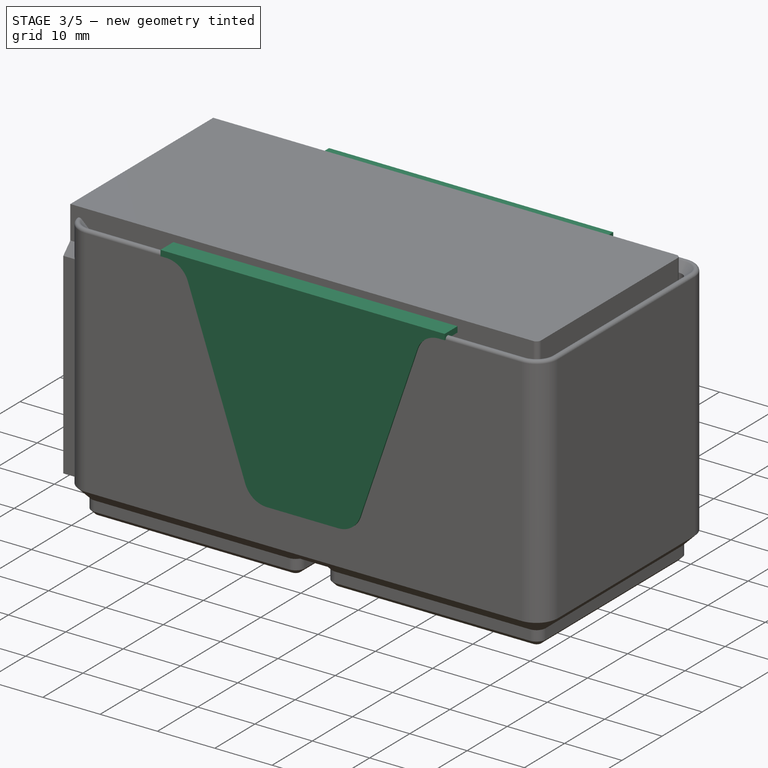
[diagram: stage 3 of 5 — iso view after this stage's code; geometry added in this stage tinted green]
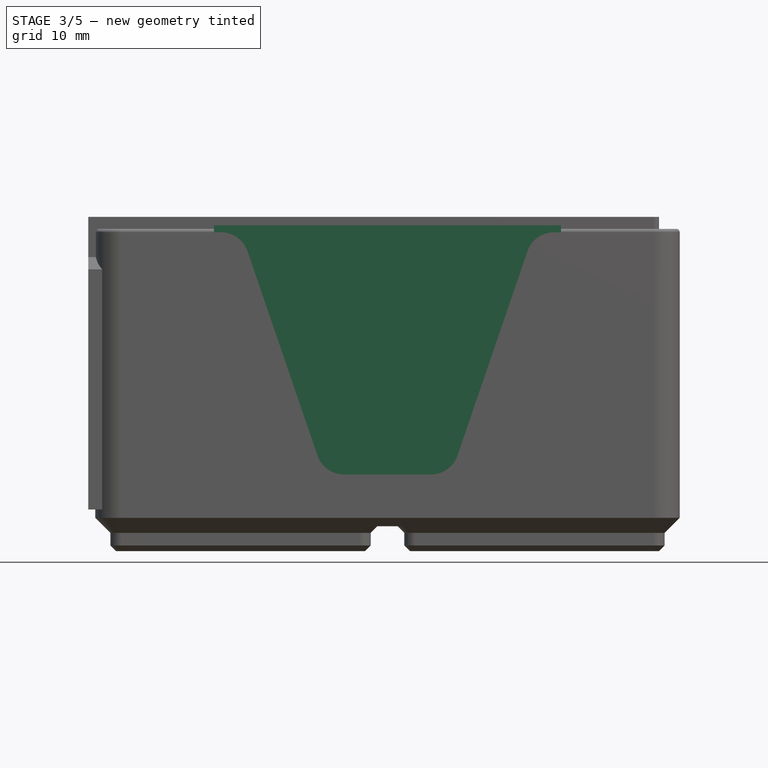
[diagram: stage 3 of 5 — front view after this stage's code; geometry added in this stage tinted green]
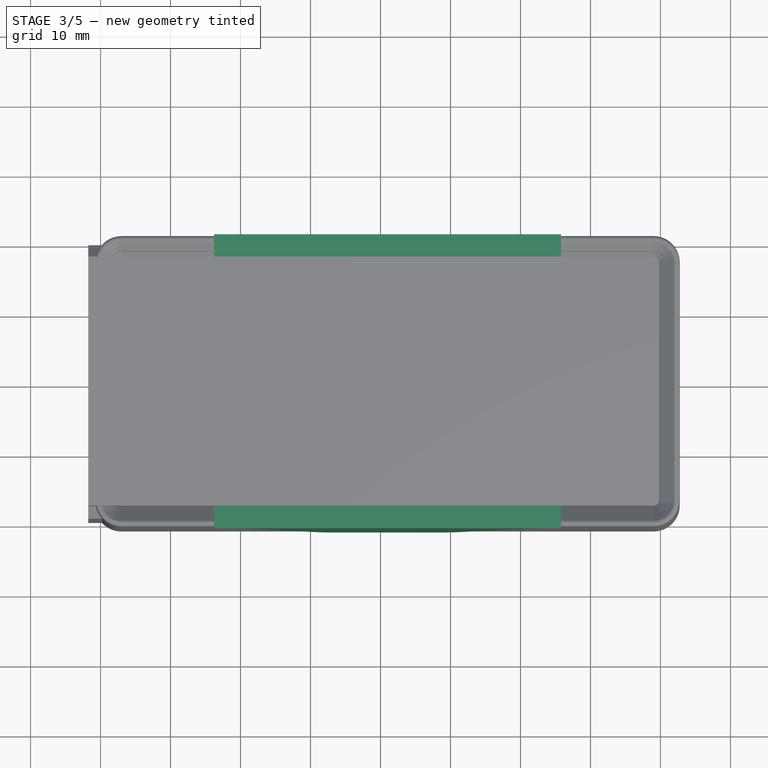
[diagram: stage 3 of 5 — top view after this stage's code; geometry added in this stage tinted green]
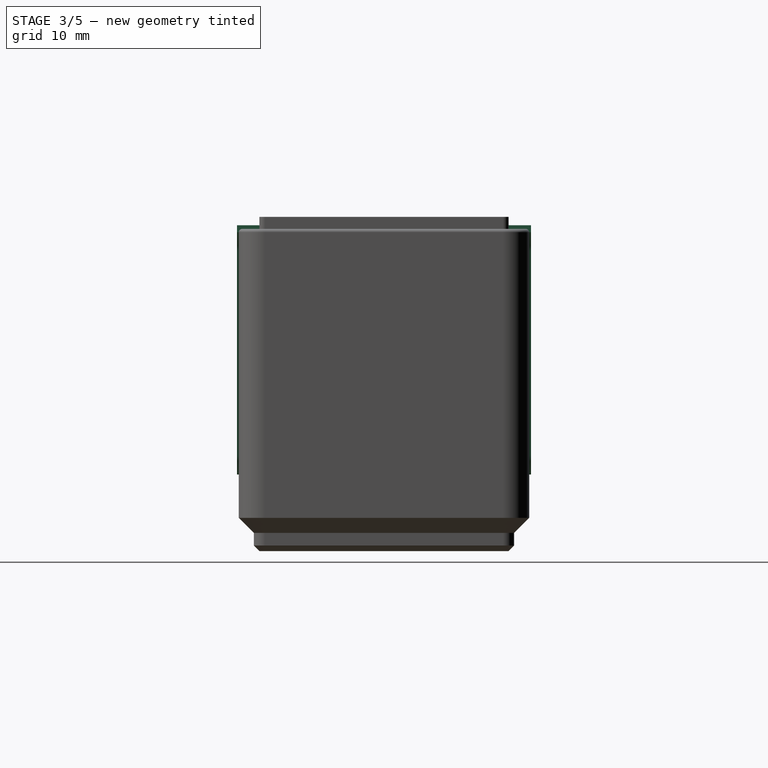
[diagram: stage 3 of 5 — right view after this stage's code; geometry added in this stage tinted green]
FEATURE [Sketcher::SketchObject] Sketch007  label="BinBaseConnectorMasterSketch"
  ArcFitTolerance = 0
  ExternalBSplineMaxDegree = 0
  ExternalBSplineTolerance = 0
  ExternalGeometry = -> [Sketch,Sketch001]
  FullyConstrained = true
  InternalTolerance = 1e-06
  InvalidShape = false
  MakeInternals = false
  Placement = pos=(0,0,4.75) rot=(0,0,1;0rad)
  TreeRank = 0
  ValidateShape = false
  expr: Placement.Base.z = 0.8 + 1.8 + 2.15
  expr: Constraints[15] = <<Params>>.WallThickness45Degree
  expr: Constraints[51] = <<Params>>.WallThickness45Degree * 2
  sketch-geometry (25):
    g0: LineSegment [constr] StartX=20.75 StartY=-1.1e-15 StartZ=0 EndX=20.75 EndY=17 EndZ=0
    g1: ArcOfCircle [constr] CenterX=17 CenterY=17 CenterZ=0 NormalX=0 NormalY=0 NormalZ=1 AngleXU=0 Radius=3.75 StartAngle=0 EndAngle=1.5708
    g2: LineSegment [constr] StartX=17 StartY=17.8 StartZ=0 EndX=17 EndY=17 EndZ=0
    g3: LineSegment [constr] StartX=17 StartY=17 StartZ=0 EndX=17.8 EndY=17 EndZ=0
    g4: LineSegment StartX=19.9015 StartY=0 StartZ=0 EndX=19.9015 EndY=17 EndZ=0
    g5: ArcOfCircle CenterX=17 CenterY=17 CenterZ=0 NormalX=0 NormalY=0 NormalZ=1 AngleXU=0 Radius=2.90147 StartAngle=2e-16 EndAngle=1.5708
    g6: LineSegment StartX=19.9015 StartY=0 StartZ=0 EndX=19.9015 EndY=-17 EndZ=0
    g7: ArcOfCircle CenterX=17 CenterY=-17 CenterZ=0 NormalX=0 NormalY=0 NormalZ=1 AngleXU=0 Radius=2.90147 StartAngle=4.71239 EndAngle=6.28319
    g8: LineSegment StartX=24.5 StartY=-21.5985 StartZ=0 EndX=24.5 EndY=-19.9015 EndZ=0
    g9: ArcOfCircle CenterX=24.5 CenterY=-17 CenterZ=0 NormalX=0 NormalY=0 NormalZ=1 AngleXU=0 Radius=2.90147 StartAngle=3.14159 EndAngle=4.71239
    g10: LineSegment StartX=21.5985 StartY=-17 StartZ=0 EndX=21.5985 EndY=17 EndZ=0
    g11: ArcOfCircle CenterX=24.5 CenterY=17 CenterZ=0 NormalX=0 NormalY=0 NormalZ=1 AngleXU=0 Radius=2.90147 StartAngle=1.5708 EndAngle=3.14159
    g12: LineSegment StartX=24.5 StartY=19.9015 StartZ=0 EndX=24.5 EndY=21.5985 EndZ=0
    g13: LineSegment StartX=17 StartY=-19.9015 StartZ=0 EndX=-17 EndY=-19.9015 EndZ=0
    g14: ArcOfCircle CenterX=-17 CenterY=-17 CenterZ=0 NormalX=0 NormalY=0 NormalZ=1 AngleXU=0 Radius=2.90147 StartAngle=3.14159 EndAngle=4.71239
    g15: LineSegment StartX=-19.9015 StartY=-17 StartZ=0 EndX=-19.9015 EndY=17 EndZ=0
    g16: ArcOfCircle CenterX=-17 CenterY=17 CenterZ=0 NormalX=0 NormalY=0 NormalZ=1 AngleXU=0 Radius=2.90147 StartAngle=1.5708 EndAngle=3.14159
    g17: LineSegment StartX=-17 StartY=19.9015 StartZ=0 EndX=17 EndY=19.9015 EndZ=0
    g18: LineSegment StartX=-24.5 StartY=21.5985 StartZ=0 EndX=-24.5 EndY=19.9015 EndZ=0
    g19: ArcOfCircle CenterX=-24.5 CenterY=17 CenterZ=0 NormalX=0 NormalY=0 NormalZ=1 AngleXU=0 Radius=2.90147 StartAngle=6.28318 EndAngle=7.85398
    g20: LineSegment StartX=-21.5985 StartY=17 StartZ=0 EndX=-21.5985 EndY=-17 EndZ=0
    g21: ArcOfCircle CenterX=-24.5 CenterY=-17 CenterZ=0 NormalX=0 NormalY=0 NormalZ=1 AngleXU=0 Radius=2.90147 StartAngle=4.71239 EndAngle=6.28319
    g22: LineSegment StartX=-24.5 StartY=-19.9015 StartZ=0 EndX=-24.5 EndY=-21.5985 EndZ=0
    g23: LineSegment StartX=24.5 StartY=21.5985 StartZ=0 EndX=-24.5 EndY=21.5985 EndZ=0
    g24: LineSegment StartX=-24.5 StartY=-21.5985 StartZ=0 EndX=24.5 EndY=-21.5985 EndZ=0
  constraints (57):
    c: Coincident(g0,g-3)
    c: Vertical(g0)
    c: Tangent(g0,g1) = -1.5708
    c: Vertical(g1,g-4)
    c: Horizontal(g-5,g0)
    c: Coincident(g2,g-4)
    c: Vertical(g2)
    c: Coincident(g2,g3)
    c: Coincident(g3,g-5)
    c: Coincident(g1,g2)
    c: PointOnObject(g4,g-1)
    c: Vertical(g4)
    c: Tangent(g4,g5) = -1.5708
    c: Coincident(g5,g1)
    c: Vertical(g5,g5)
    c: DistanceX(g4,g0) = 0.848528
    c: DistanceX(g5,g0) = 3.75  'a'
    c: Coincident(g4,g6)
    c: Vertical(g6)
    c: Tangent(g6,g7) = 1.5708
    c: Perpendicular(g8,g9) = 4.71239
    c: Tangent(g9,g10) = 1.5708
    c: Tangent(g10,g11) = 1.5708
    c: Coincident(g11,g12)
    c: Vertical(g12)
    c: Symmetric(g5,g11,g0)
    c: Symmetric(g5,g11,g0)
    c: Symmetric(g5,g7,g-1)
    c: Symmetric(g11,g8,g-1)
    c: Symmetric(g9,g11,g-1)
    c: Horizontal(g13)
    c: Tangent(g13,g14) = 1.5708
    c: Tangent(g14,g15) = 1.5708
    c: Tangent(g15,g16) = 1.5708
    c: Coincident(g17,g5)
    c: Horizontal(g17)
    c: Tangent(g16,g17) = 1.5708
    c: Symmetric(g5,g14,g-1)
    c: Perpendicular(g18,g19) = 4.71239
    c: Coincident(g19,g20)
    c: Vertical(g20)
    c: Tangent(g20,g21) = 1.5708
    c: Coincident(g21,g22)
    c: Equal(g19,g5)
    c: Symmetric(g18,g8,g-1)
    c: Symmetric(g22,g12,g-1)
    c: Symmetric(g18,g8,g-1)
    c: Symmetric(g21,g11,g-1)
    c: Symmetric(g20,g10,g-1)
    c: Coincident(g23,g12)
    c: Horizontal(g23)
    c: DistanceY(g12,g12) = 1.69706
    c: Coincident(g18,g23)
    c: Coincident(g24,g22)
    c: Coincident(g24,g8)
    c: Symmetric(g16,g7,g-1)
    c: Tangent(g7,g13) = 1.5708
FEATURE [PartDesign::SubShapeBinder] Binder004  label="BinBaseConnectorMasterSketchBinder"
  BindCopyOnChange = 0
  BindMode = 0
  ClaimChildren = false
  Context = -> Group [Group003.Body004.Binder004.]
  EdgeTolerance = 1e-06
  FillStyle = 0
  Fuse = false
  InvalidShape = false
  MakeFace = true
  MergeEdges = true
  OffsetFill = false
  OffsetIntersection = false
  OffsetJoinType = 0
  OffsetOpenResult = false
  Outline = false
  PartialLoad = false
  Refine = true
  Relative = true
  SplitEdges = false
  Support = -> [Sketch007]
  TightBound = false
  TreeRank = 0
  ValidateShape = false
  _Version = 2
FEATURE [PartDesign::Pad] Pad001
  AddSubType = 0
  AutoTaperInnerAngle = true
  CheckUpToFaceLimits = true
  ClaimChildren = false
  Direction = (0,0,1)
  Fit = 0
  FitJoin = 0
  InnerFit = 0
  InnerFitJoin = 0
  InvalidShape = false
  Length = 0.848528
  Length2 = 10
  NewSolid = false
  Profile = -> Binder004
  Refine = true
  Suppress = false
  TaperInnerAngle = 0
  TaperInnerAngleRev = 0
  TreeRank = 0
  Type = 0
  ValidateShape = false
  _ProfileBasedVersion = 0
  expr: Length = <<Params>>.WallThickness45Degree
FEATURE [Sketcher::SketchObject] Sketch008  label="BinBaseConnectorCutMasterSketch"
  ArcFitTolerance = 1e-06
  ExternalBSplineMaxDegree = 5
  ExternalBSplineTolerance = 0.0001
  ExternalGeometry = -> [Sketch003,Sketch004]
  FullyConstrained = true
  InternalTolerance = 1e-06
  InvalidShape = false
  MakeInternals = false
  Placement = pos=(0,0,4.75) rot=(0,0,1;0rad)
  TreeRank = 41
  ValidateShape = false
  expr: Placement.Base.z = <<BinBaseConnectorMasterSketch>>.Placement.Base.z
  sketch-geometry (14):
    g0: ArcOfCircle CenterX=-17 CenterY=17 CenterZ=0 NormalX=0 NormalY=0 NormalZ=1 AngleXU=0 Radius=3.75 StartAngle=1.5708 EndAngle=3.14159
    g1: LineSegment StartX=-17 StartY=20.75 StartZ=0 EndX=59 EndY=20.75 EndZ=0
    g2: ArcOfCircle CenterX=59 CenterY=17 CenterZ=0 NormalX=0 NormalY=0 NormalZ=1 AngleXU=0 Radius=3.75 StartAngle=1e-16 EndAngle=1.5708
    g3: LineSegment StartX=62.75 StartY=17 StartZ=0 EndX=62.75 EndY=-17 EndZ=0
    g4: ArcOfCircle CenterX=59 CenterY=-17 CenterZ=0 NormalX=0 NormalY=0 NormalZ=1 AngleXU=0 Radius=3.75 StartAngle=4.71239 EndAngle=6.28319
    g5: LineSegment StartX=59 StartY=-20.75 StartZ=0 EndX=-17 EndY=-20.75 EndZ=0
    g6: ArcOfCircle CenterX=-17 CenterY=-17 CenterZ=0 NormalX=0 NormalY=0 NormalZ=1 AngleXU=0 Radius=3.75 StartAngle=3.14159 EndAngle=4.71239
    g7: LineSegment StartX=-20.75 StartY=-17 StartZ=0 EndX=-20.75 EndY=17 EndZ=0
    g8: GeomPoint [constr] X=-20.75 Y=20.75 Z=0
    g9: GeomPoint [constr] X=62.75 Y=-20.75 Z=0
    g10: LineSegment StartX=89 StartY=-47 StartZ=0 EndX=-47 EndY=-47 EndZ=0
    g11: LineSegment StartX=-47 StartY=-47 StartZ=0 EndX=-47 EndY=47 EndZ=0
    g12: LineSegment StartX=-47 StartY=47 StartZ=0 EndX=89 EndY=47 EndZ=0
    g13: LineSegment StartX=89 StartY=47 StartZ=0 EndX=89 EndY=-47 EndZ=0
  constraints (34):
    c: Tangent(g0,g1) = 1.5708
    c: Tangent(g1,g2) = 1.5708
    c: Tangent(g2,g3) = 1.5708
    c: Tangent(g3,g4) = 1.5708
    c: Tangent(g4,g5) = 1.5708
    c: Tangent(g5,g6) = 1.5708
    c: Tangent(g6,g7) = 1.5708
    c: Tangent(g7,g0) = 1.5708
    c: Horizontal(g1)
    c: Horizontal(g5)
    c: Vertical(g3)
    c: Vertical(g7)
    c: Equal(g0,g2)
    c: Equal(g2,g4)
    c: Equal(g4,g6)
    c: PointOnObject(g8,g1)
    c: PointOnObject(g8,g7)
    c: PointOnObject(g9,g3)
    c: PointOnObject(g9,g5)
    c: Coincident(g0,g-4)
    c: Coincident(g4,g-5)
    c: Coincident(g10,g11)
    c: Coincident(g11,g12)
    c: Coincident(g12,g13)
    c: Coincident(g13,g10)
    c: Horizontal(g10)
    c: Horizontal(g12)
    c: Vertical(g11)
    c: Vertical(g13)
    c: DistanceY(g0,g11) = 30
    c: DistanceX(g11,g0) = 30
    c: DistanceY(g10,g4) = 30
    c: DistanceX(g4,g10) = 30
    c: PointOnObject(g-3,g3)
FEATURE [PartDesign::SubShapeBinder] Binder005  label="Binder005(BinBaseConnectorCutMasterSketch)"
  BindCopyOnChange = 0
  BindMode = 0
  ClaimChildren = false
  Context = -> Group [Group003.Body008.Pad002.Binder005.]
  EdgeTolerance = 1e-06
  FillStyle = 0
  Fuse = false
  InvalidShape = false
  MakeFace = true
  MergeEdges = true
  OffsetFill = false
  OffsetIntersection = false
  OffsetJoinType = 0
  OffsetOpenResult = false
  Outline = false
  PartialLoad = false
  Relative = true
  SplitEdges = false
  Support = -> [Sketch008]
  TightBound = false
  TreeRank = 52
  ValidateShape = false
  _Version = 8
FEATURE [PartDesign::Pad] Pad002
  AddSubType = 0
  AlongSketchNormal = false
  AutoTaperInnerAngle = true
  CheckUpToFaceLimits = true
  ClaimChildren = false
  Direction = (0,0,1)
  Fit = 0
  FitJoin = 0
  InnerFit = 0
  InnerFitJoin = 0
  InvalidShape = false
  Length = 2.54558
  Length2 = 10
  Linearize = true
  Midplane = true
  NewSolid = false
  Profile = -> Binder005
  Refine = true
  Suppress = false
  TaperInnerAngle = 0
  TaperInnerAngleRev = 0
  TreeRank = 53
  Type = 0
  ValidateShape = false
  _ProfileBasedVersion = 1
  expr: Length = <<Params>>.WallThickness45Degree * 3
FEATURE [PartDesign::Body] Body008  label="BinBaseConnectorCutPart"
  AutoGroupSolids = false
  ClaimAllChildren = false
  ExportMode = 0
  Group = -> [Binder005,Pad002]
  InvalidShape = false
  Origin = -> Origin008
  Tip = -> Pad002
  TreeRank = 51
  ValidateShape = false
  _ExportChildren = -> [Pad002]
  _GroupVersion = 1
FEATURE [PartDesign::LinearPattern] LinearPattern002
  AddSubType = 0
  CopyShape = false
  Direction = -> X_Axis004
  InvalidShape = false
  Length = 42
  NewSolid = false
  Occurrences = 2
  ParallelTransform = true
  Refine = true
  SubTransform = true
  Suppress = false
  TreeRank = 102
  ValidateShape = false
  _Version = 3
  expr: Length = (<<Params>>.ModuleSizeX - 1) * 42
  expr: Occurrences = <<Params>>.ModuleSizeX
FEATURE [PartDesign::LinearPattern] LinearPattern003
  AddSubType = 0
  CopyShape = false
  Direction = -> Y_Axis004
  InvalidShape = false
  Length = 0
  NewSolid = false
  Occurrences = 1
  ParallelTransform = true
  Refine = true
  SubTransform = true
  Suppress = false
  TreeRank = 103
  ValidateShape = false
  _Version = 3
  expr: Length = (<<Params>>.ModuleSizeY - 1) * 42
  expr: Occurrences = <<Params>>.ModuleSizeY
FEATURE [PartDesign::MultiTransform] MultiTransform001
  AddSubType = 0
  BaseFeature = -> Pad001
  CopyShape = false
  InvalidShape = false
  NewSolid = false
  OriginalSubs = -> [Pad001]
  Originals = -> [Pad001]
  ParallelTransform = true
  Refine = true
  SubTransform = true
  Suppress = false
  Transformations = -> [LinearPattern002,LinearPattern003]
  TreeRank = 101
  ValidateShape = false
  _Version = 3
FEATURE [PartDesign::SubShapeBinder] Reference004  label="Reference004(BinBaseConnectorCutPart)"
  BindCopyOnChange = 0
  BindMode = 0
  ClaimChildren = false
  Context = -> Group [Group003.Body004.Boolean001.Reference004.]
  EdgeTolerance = 1e-06
  FillStyle = 0
  Fuse = false
  InvalidShape = false
  MakeFace = true
  MergeEdges = true
  OffsetFill = false
  OffsetIntersection = false
  OffsetJoinType = 0
  OffsetOpenResult = false
  Outline = false
  PartialLoad = false
  Relative = true
  SplitEdges = false
  Support = -> [Body008]
  TightBound = false
  TreeRank = 105
  ValidateShape = false
  _Version = 8
FEATURE [PartDesign::Boolean] Boolean001
  BaseFeature = -> MultiTransform001
  ClaimAllChildren = false
  ExportMode = 0
  Group = -> [Reference004]
  InvalidShape = false
  NewSolid = false
  Refine = true
  Suppress = false
  TreeRank = 104
  Type = 1
  ValidateShape = false
  _ExportChildren = -> [Reference004]
  _GroupVersion = 1
FEATURE [PartDesign::Body] Body021  label="KnifeBinCutPartBody"
  AutoGroupSolids = false
  ClaimAllChildren = false
  ExportMode = 0
  Group = -> [Sketch021,LinearPattern010,Pad006]
  InvalidShape = false
  Origin = -> Origin021
  Tip = -> Pad006
  TreeRank = 317
  ValidateShape = false
  _ExportChildren = -> [Sketch021,LinearPattern010,Pad006]
  _GroupVersion = 1
FEATURE [App::DocumentObjectGroup] Group011  label="KitchenBinCutParts"
  ClaimAllChildren = true
  ExportMode = 1
  Group = -> [Body017,Body019,Body021]
  TreeRank = 256
  _GroupVersion = 1
FEATURE [Sketcher::SketchObject] Sketch022  label="UVShapedOpeningCutPartSketch"
  ArcFitTolerance = 1e-06
  ExternalBSplineMaxDegree = 5
  ExternalBSplineTolerance = 0.0001
  FullyConstrained = true
  InternalTolerance = 1e-06
  InvalidShape = false
  MakeInternals = false
  Placement = pos=(0,0,0) rot=(1,0,0;1.5708rad)
  TreeRank = 334
  ValidateShape = false
  expr: Constraints[14] = <<BinBaseConnectorMasterSketch>>.Placement.Base.z + <<Params>>.WallThickless + <<Params>>.UShapeOpeningBottomPad
  expr: Constraints[16] = <<Params>>.ModuleSizeX * 42 / 2 - 21
  expr: Constraints[28] = <<Params>>.ModuleSizeZ_MM - <<Params>>.WallThickless
  expr: Constraints[29] = <<Params>>.UShapeOpeningBottom
  expr: Constraints[30] = <<Params>>.UShapeOpeningTop
  expr: Constraints[31] = <<Params>>.UShapeOpeningRadius
  sketch-geometry (14):
    g0: LineSegment StartX=-3.78414 StartY=45.55 StartZ=0 EndX=-2.78414 EndY=45.55 EndZ=0
    g1: ArcOfCircle CenterX=-2.78414 CenterY=41.55 CenterZ=0 NormalX=0 NormalY=0 NormalZ=1 AngleXU=0 Radius=4 StartAngle=0.330025 EndAngle=1.5708
    g2: LineSegment StartX=1 StartY=42.8463 StartZ=0 EndX=11 EndY=13.6537 EndZ=0
    g3: ArcOfCircle CenterX=14.7841 CenterY=14.95 CenterZ=0 NormalX=0 NormalY=0 NormalZ=1 AngleXU=0 Radius=4 StartAngle=3.47162 EndAngle=4.71239
    g4: LineSegment StartX=14.7841 StartY=10.95 StartZ=0 EndX=27.2159 EndY=10.95 EndZ=0
    g5: ArcOfCircle CenterX=27.2159 CenterY=14.95 CenterZ=0 NormalX=0 NormalY=0 NormalZ=1 AngleXU=0 Radius=4 StartAngle=4.71239 EndAngle=5.95316
    g6: LineSegment StartX=31 StartY=13.6537 StartZ=0 EndX=41 EndY=42.8463 EndZ=0
    g7: ArcOfCircle CenterX=44.7841 CenterY=41.55 CenterZ=0 NormalX=0 NormalY=0 NormalZ=1 AngleXU=0 Radius=4 StartAngle=1.5708 EndAngle=2.81157
    g8: LineSegment StartX=44.7841 StartY=45.55 StartZ=0 EndX=45.7841 EndY=45.55 EndZ=0
    g9: LineSegment StartX=45.7841 StartY=45.55 StartZ=0 EndX=45.7841 EndY=46.55 EndZ=0
    g10: LineSegment StartX=45.7841 StartY=46.55 StartZ=0 EndX=-3.78414 EndY=46.55 EndZ=0
    g11: LineSegment StartX=-3.78414 StartY=46.55 StartZ=0 EndX=-3.78414 EndY=45.55 EndZ=0
    g12: GeomPoint [constr] X=21 Y=10.95 Z=0
    g13: LineSegment [constr] StartX=21 StartY=10.95 StartZ=0 EndX=21 EndY=46.55 EndZ=0
  constraints (33):
    c: Horizontal(g0)
    c: Tangent(g0,g1) = 1.5708
    c: Tangent(g2,g3) = -1.5708
    c: Horizontal(g4)
    c: Tangent(g4,g5) = -1.5708
    c: Tangent(g6,g7) = 1.5708
    c: Horizontal(g8)
    c: Coincident(g8,g9)
    c: Vertical(g9)
    c: Coincident(g9,g10)
    c: Horizontal(g10)
    c: Coincident(g10,g11)
    c: Coincident(g11,g0)
    c: Vertical(g11)
    c: DistanceY(g3) = 10.95
    c: Symmetric(g3,g4,g12)
    c: DistanceX(g-1,g12) = 21
    c: Tangent(g1,g2) = 1.5708
    c: Tangent(g3,g4) = -1.5708
    c: Tangent(g5,g6) = -1.5708
    c: Tangent(g7,g8) = 1.5708
    c: Equal(g1,g3)
    c: DistanceY(g11,g11) = 1
    c: Coincident(g13,g12)
    c: PointOnObject(g13,g10)
    c: Symmetric(g3,g5,g13)
    c: Symmetric(g1,g7,g13)
    c: Symmetric(g0,g8,g13)
    c: DistanceY(g0) = 45.55
    c: DistanceX(g2,g5) = 20
    c: DistanceX(g1,g6) = 40
    c: Radius(g5) = 4
    c: DistanceX(g0,g0) = 1
FEATURE [PartDesign::Pad] Pad007
  AddSubType = 0
  AlongSketchNormal = false
  AutoTaperInnerAngle = true
  CheckUpToFaceLimits = true
  ClaimChildren = false
  Direction = (0,-1,-2e-16)
  Fit = 0
  FitJoin = 0
  InnerFit = 0
  InnerFitJoin = 0
  InvalidShape = false
  Length = 21
  Length2 = 21
  Linearize = true
  NewSolid = false
  Profile = -> Sketch022
  ReferenceAxis = -> Sketch022 [N_Axis]
  Refine = true
  Suppress = false
  TaperInnerAngle = 0
  TaperInnerAngleRev = 0
  TreeRank = 345
  Type = 4
  ValidateShape = false
  _ProfileBasedVersion = 1
  expr: Length2 = <<Params>>.UShapeOpeningBothSides * (<<Params>>.ModuleSizeY - 1 + 21)
FEATURE [PartDesign::SubShapeBinder] Reference  label="Reference(BinBasePart)"
  BindCopyOnChange = 0
  BindMode = 0
  ClaimChildren = false
  Context = -> Group008 [Body010.Boolean.Reference.]
  EdgeTolerance = 1e-06
  FillStyle = 0
  Fuse = true
  InvalidShape = false
  MakeFace = true
  MergeEdges = true
  OffsetFill = false
  OffsetIntersection = false
  OffsetJoinType = 0
  OffsetOpenResult = false
  Outline = false
  PartialLoad = false
  Relative = true
  SplitEdges = false
  Support = -> [Body]
  TightBound = false
  TreeRank = 396
  ValidateShape = false
  _Version = 8
FEATURE [PartDesign::Boolean] Boolean
  ClaimAllChildren = false
  ExportMode = 0
  FixShape = 1
  Group = -> [Reference006,Reference,Reference005,Reference007]
  InvalidShape = false
  NewSolid = false
  Suppress = false
  TreeRank = 138
  Type = 0
  ValidateShape = true
  _ExportChildren = -> [Reference006,Reference,Reference005,Reference007]
  _GroupVersion = 1
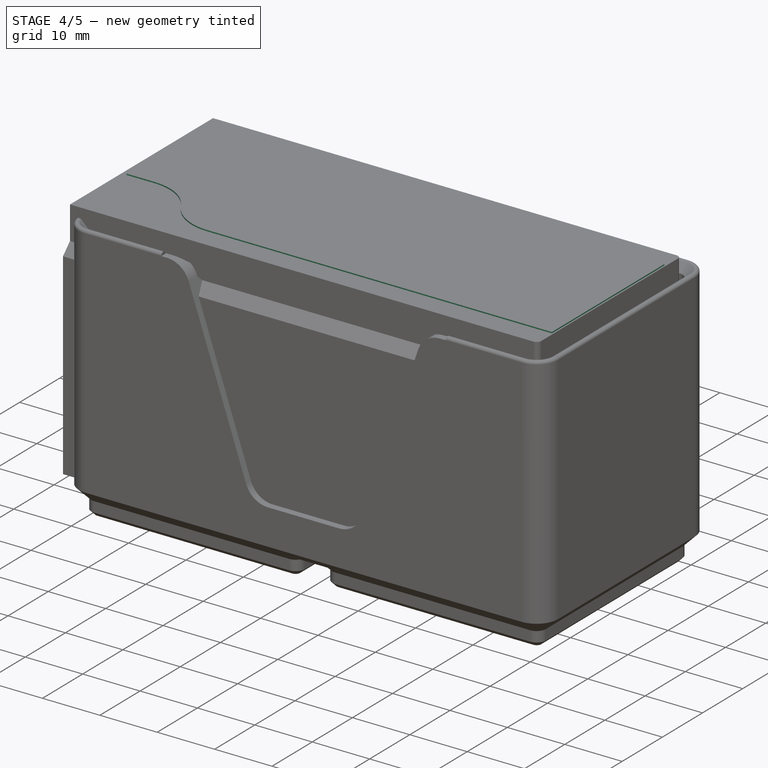
[diagram: stage 4 of 5 — iso view after this stage's code; geometry added in this stage tinted green]
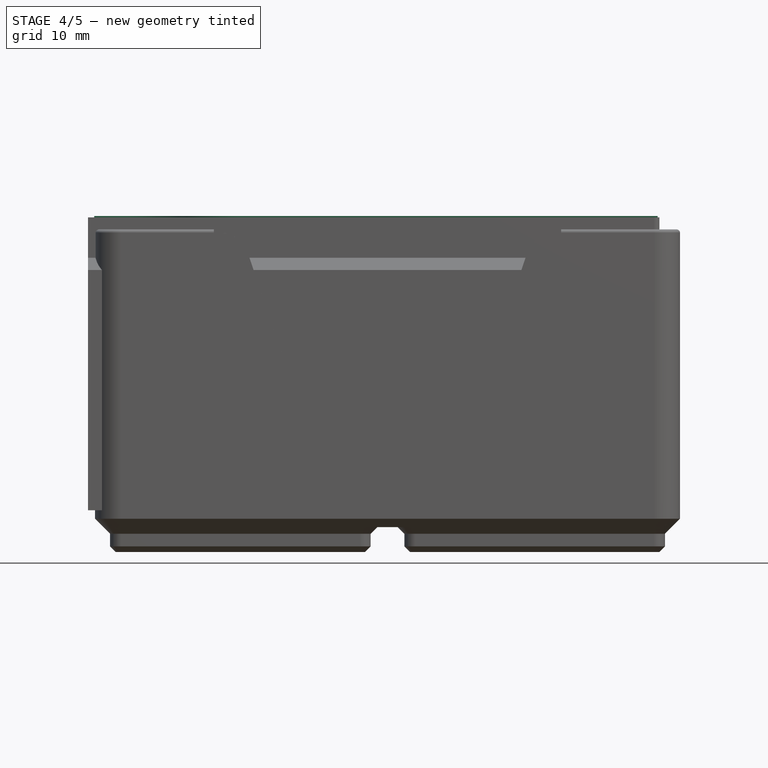
[diagram: stage 4 of 5 — front view after this stage's code; geometry added in this stage tinted green]
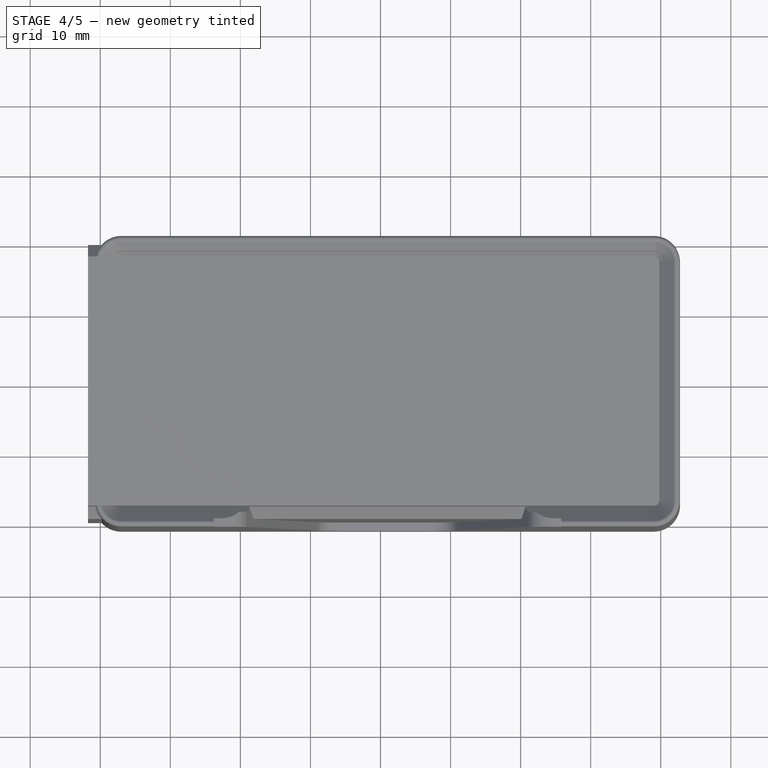
[diagram: stage 4 of 5 — top view after this stage's code; geometry added in this stage tinted green]
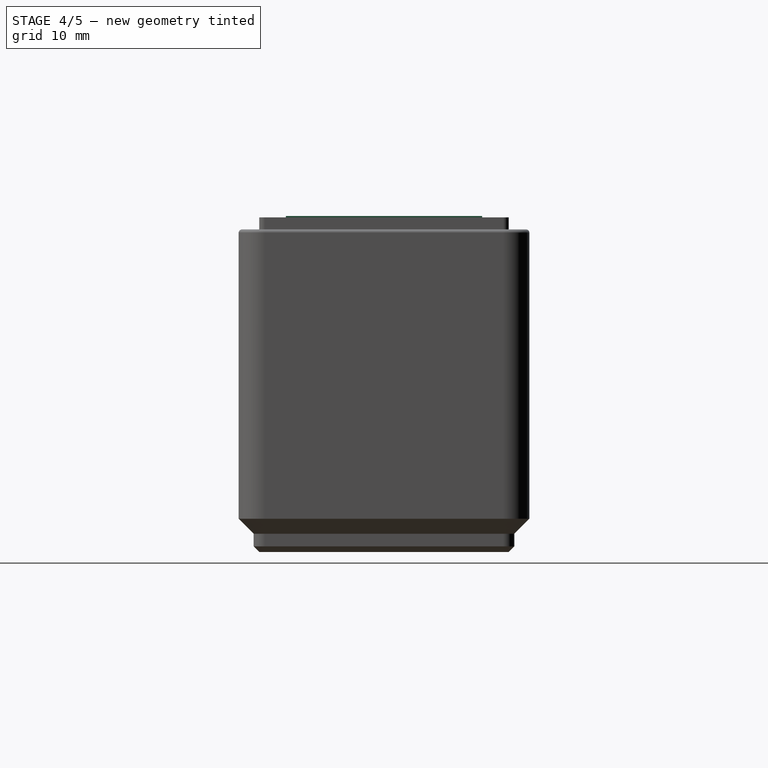
[diagram: stage 4 of 5 — right view after this stage's code; geometry added in this stage tinted green]
FEATURE [PartDesign::Body] Body011  label="CompletedLightBin"
  AutoGroupSolids = false
  ClaimAllChildren = false
  ExportMode = 0
  Group = -> [Boolean002]
  InvalidShape = false
  Origin = -> Origin011
  Tip = -> Boolean002
  TreeRank = 144
  ValidateShape = false
  _ExportChildren = -> [Boolean002]
  _GroupVersion = 1
FEATURE [Part::SubShapeBinder] Import  label="Import(HalfProfileBinStackingLipOnXMasterSketch)"
  BindCopyOnChange = 0
  BindMode = 0
  ClaimChildren = false
  Context = -> Group [Group005.Body013.Import.]
  EdgeTolerance = 1e-06
  FillStyle = 0
  Fuse = false
  InvalidShape = false
  MakeFace = false
  MergeEdges = true
  OffsetFill = false
  OffsetIntersection = false
  OffsetJoinType = 0
  OffsetOpenResult = false
  Outline = false
  PartialLoad = false
  Relative = true
  SplitEdges = false
  Support = -> [Sketch003]
  TightBound = false
  TreeRank = 189
  ValidateShape = false
  _Version = 8
FEATURE [Part::SubShapeBinder] Import002  label="Import002(PathBinBaseMasterSketch)"
  BindCopyOnChange = 0
  BindMode = 0
  ClaimChildren = false
  Context = -> Group [Group005.Body013.Import002.]
  EdgeTolerance = 1e-06
  FillStyle = 0
  Fuse = false
  InvalidShape = false
  MakeFace = false
  MergeEdges = true
  OffsetFill = false
  OffsetIntersection = false
  OffsetJoinType = 0
  OffsetOpenResult = false
  Outline = false
  PartialLoad = false
  Relative = true
  SplitEdges = false
  Support = -> [Sketch001]
  TightBound = false
  TreeRank = 190
  ValidateShape = false
  _Version = 8
FEATURE [Part::SubShapeBinder] Import003  label="Import003(PathBinStackingLipMasterSketch)"
  BindCopyOnChange = 0
  BindMode = 0
  ClaimChildren = false
  Context = -> Group [Group005.Body013.Import003.]
  EdgeTolerance = 1e-06
  FillStyle = 0
  Fuse = false
  InvalidShape = false
  MakeFace = false
  MergeEdges = true
  OffsetFill = false
  OffsetIntersection = false
  OffsetJoinType = 0
  OffsetOpenResult = false
  Outline = false
  PartialLoad = false
  Relative = true
  SplitEdges = false
  Support = -> [Sketch004]
  TightBound = false
  TreeRank = 192
  ValidateShape = false
  _Version = 8
FEATURE [Sketcher::SketchObject] Sketch012  label="PathFilledBinSketch"
  ArcFitTolerance = 1e-06
  AttachmentOffset = pos=(0,0,4.75) rot=(0,0,1;0rad)
  AttachmentSupport = -> [XY_Plane012]
  ExternalBSplineMaxDegree = 5
  ExternalBSplineTolerance = 0.0001
  ExternalGeometry = -> [Import,Import002,Import003]
  FullyConstrained = true
  InternalTolerance = 1e-06
  InvalidShape = false
  MakeInternals = false
  MapMode = 5
  Placement = pos=(0,0,4.75) rot=(0,0,1;0rad)
  Support = -> [XY_Plane012]
  TreeRank = 188
  ValidateShape = false
  sketch-geometry (10):
    g0: ArcOfCircle CenterX=-17 CenterY=17 CenterZ=0 NormalX=0 NormalY=0 NormalZ=1 AngleXU=0 Radius=3.75 StartAngle=1.5708 EndAngle=3.14159
    g1: LineSegment StartX=-17 StartY=20.75 StartZ=0 EndX=59 EndY=20.75 EndZ=0
    g2: ArcOfCircle CenterX=59 CenterY=17 CenterZ=0 NormalX=0 NormalY=0 NormalZ=1 AngleXU=0 Radius=3.75 StartAngle=5e-16 EndAngle=1.5708
    g3: LineSegment StartX=62.75 StartY=17 StartZ=0 EndX=62.75 EndY=-17 EndZ=0
    g4: ArcOfCircle CenterX=59 CenterY=-17 CenterZ=0 NormalX=0 NormalY=0 NormalZ=1 AngleXU=0 Radius=3.75 StartAngle=4.71239 EndAngle=6.28319
    g5: LineSegment StartX=59 StartY=-20.75 StartZ=0 EndX=-17 EndY=-20.75 EndZ=0
    g6: ArcOfCircle CenterX=-17 CenterY=-17 CenterZ=0 NormalX=0 NormalY=0 NormalZ=1 AngleXU=0 Radius=3.75 StartAngle=3.14159 EndAngle=4.71239
    g7: LineSegment StartX=-20.75 StartY=-17 StartZ=0 EndX=-20.75 EndY=17 EndZ=0
    g8: GeomPoint [constr] X=-20.75 Y=20.75 Z=0
    g9: GeomPoint [constr] X=62.75 Y=-20.75 Z=0
  constraints (24):
    c: Tangent(g0,g1) = 1.5708
    c: Tangent(g1,g2) = 1.5708
    c: Tangent(g2,g3) = 1.5708
    c: Tangent(g3,g4) = 1.5708
    c: Tangent(g4,g5) = 1.5708
    c: Tangent(g5,g6) = 1.5708
    c: Tangent(g6,g7) = 1.5708
    c: Tangent(g7,g0) = 1.5708
    c: Horizontal(g1)
    c: Horizontal(g5)
    c: Vertical(g3)
    c: Vertical(g7)
    c: Equal(g0,g2)
    c: Equal(g2,g4)
    c: Equal(g4,g6)
    c: PointOnObject(g8,g1)
    c: PointOnObject(g8,g7)
    c: PointOnObject(g9,g3)
    c: PointOnObject(g9,g5)
    c: Horizontal(g6,g-5)
    c: Vertical(g5,g-4)
    c: PointOnObject(g-3,g3)
    c: Horizontal(g-7,g2)
    c: Vertical(g1,g-6)
FEATURE [PartDesign::Pad] Pad003
  AddSubType = 0
  AlongSketchNormal = false
  AutoTaperInnerAngle = true
  CheckUpToFaceLimits = true
  ClaimChildren = false
  Direction = (0,0,1)
  Fit = 0
  FitJoin = 0
  InnerFit = 0
  InnerFitJoin = 0
  InvalidShape = false
  Length = 37.25
  Length2 = 10
  Linearize = true
  NewSolid = false
  Profile = -> Sketch012
  ReferenceAxis = -> Sketch012 [N_Axis]
  Refine = true
  Suppress = false
  TaperInnerAngle = 0
  TaperInnerAngleRev = 0
  TreeRank = 191
  Type = 0
  ValidateShape = false
  _ProfileBasedVersion = 1
  expr: Length = <<Params>>.HeightUnits_MM - 4.75 mm
FEATURE [PartDesign::Body] Body013  label="BinFilledPart"
  AutoGroupSolids = false
  ClaimAllChildren = false
  ExportMode = 0
  Group = -> [Sketch012,Import,Import002,Pad003,Import003]
  InvalidShape = false
  Origin = -> Origin013
  Tip = -> Pad003
  TreeRank = 187
  ValidateShape = false
  _ExportChildren = -> [Import,Import002,Pad003,Import003]
  _GroupVersion = 1
FEATURE [App::DocumentObjectGroup] Group005  label="BinStackingLipParts"
  ClaimAllChildren = true
  ExportMode = 1
  Group = -> [Body001,Body002,Body013]
  TreeRank = 0
  _GroupVersion = 1
FEATURE [PartDesign::SubShapeBinder] Reference012  label="Reference012(BinFilledPart)"
  BindCopyOnChange = 0
  BindMode = 0
  ClaimChildren = false
  Context = -> Group008 [Body014.Boolean003.Reference012.]
  EdgeTolerance = 1e-06
  FillStyle = 0
  Fuse = false
  InvalidShape = false
  MakeFace = true
  MergeEdges = true
  OffsetFill = false
  OffsetIntersection = false
  OffsetJoinType = 0
  OffsetOpenResult = false
  Outline = false
  PartialLoad = false
  Relative = true
  SplitEdges = false
  Support = -> [Body013]
  TightBound = false
  TreeRank = 207
  ValidateShape = false
  _Version = 8
FEATURE [PartDesign::SubShapeBinder] Reference013  label="Reference013(BinStackingLipPart)"
  BindCopyOnChange = 0
  BindMode = 0
  ClaimChildren = false
  Context = -> Group008 [Body014.Boolean003.Reference013.]
  EdgeTolerance = 1e-06
  FillStyle = 0
  Fuse = false
  InvalidShape = false
  MakeFace = true
  MergeEdges = true
  OffsetFill = false
  OffsetIntersection = false
  OffsetJoinType = 0
  OffsetOpenResult = false
  Outline = false
  PartialLoad = false
  Relative = true
  SplitEdges = false
  Support = -> [Body001]
  TightBound = false
  TreeRank = 208
  ValidateShape = false
  _Version = 8
FEATURE [PartDesign::SubShapeBinder] Reference014  label="Reference014(BinBaseFilledPart)"
  BindCopyOnChange = 0
  BindMode = 0
  ClaimChildren = false
  Context = -> Group008 [Body014.Boolean003.Reference014.]
  EdgeTolerance = 1e-06
  FillStyle = 0
  Fuse = false
  InvalidShape = false
  MakeFace = true
  MergeEdges = true
  OffsetFill = false
  OffsetIntersection = false
  OffsetJoinType = 0
  OffsetOpenResult = false
  Outline = false
  PartialLoad = false
  Relative = true
  SplitEdges = false
  Support = -> [Body012]
  TightBound = false
  TreeRank = 209
  ValidateShape = false
  _Version = 8
FEATURE [PartDesign::Boolean] Boolean003
  ClaimAllChildren = false
  ExportMode = 0
  Group = -> [Reference012,Reference013,Reference014]
  InvalidShape = false
  NewSolid = false
  Refine = true
  Suppress = false
  TreeRank = 210
  Type = 0
  ValidateShape = false
  _ExportChildren = -> [Reference012,Reference013,Reference014]
  _GroupVersion = 1
FEATURE [PartDesign::Body] Body018  label="FilledSpoonBin"
  AutoGroupSolids = false
  ClaimAllChildren = false
  ExportMode = 0
  Group = -> [Boolean005]
  InvalidShape = false
  Origin = -> Origin018
  Tip = -> Boolean005
  TreeRank = 278
  ValidateShape = false
  _ExportChildren = -> [Boolean005]
  _GroupVersion = 1
FEATURE [Sketcher::SketchObject] Sketch020  label="ForkCutSketch"
  ArcFitTolerance = 1e-06
  ExternalBSplineMaxDegree = 5
  ExternalBSplineTolerance = 0.0001
  ExternalGeometry = -> [Sketch018]
  FullyConstrained = true
  InternalTolerance = 1e-06
  InvalidShape = false
  MakeInternals = false
  Placement = pos=(0,0,5.95) rot=(0,0,1;0rad)
  TreeRank = 282
  ValidateShape = false
  expr: Placement.Base.z = <<BinBaseConnectorMasterSketch>>.Placement.Base.z + <<Params>>.WallThickless
  expr: Constraints[16] = <<Params>>.ForkCenterY
  expr: Constraints[18] = <<Params>>.WallThickless
  expr: Constraints[19] = <<Params>>.ForkTopSpace + <<Params>>.WallThickless
  expr: Constraints[3] = <<Params>>.WallThickless + 0.1
  expr: Constraints[4] = <<Params>>.ForkNeck
  expr: Constraints[5] = <<Params>>.ForkRootAndTineX
  expr: Constraints[7] = <<Params>>.ForkRootAndTineY
  sketch-geometry (14):
    g0: LineSegment StartX=-20.85 StartY=5 StartZ=0 EndX=-16.0385 EndY=5 EndZ=0
    g1: LineSegment StartX=-16.0385 StartY=-5 StartZ=0 EndX=-20.85 EndY=-5 EndZ=0
    g2: LineSegment StartX=-20.85 StartY=5 StartZ=0 EndX=-20.85 EndY=-5 EndZ=0
    g3: LineSegment [constr] StartX=59.55 StartY=-7e-16 StartZ=0 EndX=-0.45 EndY=-7e-16 EndZ=0
    g4: LineSegment [constr] StartX=-0.45 StartY=14 StartZ=0 EndX=-0.45 EndY=-14 EndZ=0
    g5: ArcOfCircle CenterX=-16.0385 CenterY=14 CenterZ=0 NormalX=0 NormalY=0 NormalZ=1 AngleXU=0 Radius=9 StartAngle=4.71239 EndAngle=5.75959
    g6: ArcOfCircle CenterX=-16.0385 CenterY=-14 CenterZ=0 NormalX=0 NormalY=0 NormalZ=1 AngleXU=0 Radius=9 StartAngle=0.523599 EndAngle=1.5708
    g7: GeomPoint [constr] X=-21 Y=-21 Z=0
    g8: GeomPoint [constr] X=62.75 Y=0 Z=0
    g9: ArcOfCircle CenterX=-0.45 CenterY=5 CenterZ=0 NormalX=0 NormalY=0 NormalZ=1 AngleXU=0 Radius=9 StartAngle=1.5708 EndAngle=2.61799
    g10: ArcOfCircle CenterX=-0.45 CenterY=-5 CenterZ=0 NormalX=0 NormalY=0 NormalZ=1 AngleXU=0 Radius=9 StartAngle=3.66519 EndAngle=4.71239
    g11: LineSegment StartX=-0.45 StartY=14 StartZ=0 EndX=59.55 EndY=14 EndZ=0
    g12: LineSegment StartX=59.55 StartY=14 StartZ=0 EndX=59.55 EndY=-14 EndZ=0
    g13: LineSegment StartX=59.55 StartY=-14 StartZ=0 EndX=-0.45 EndY=-14 EndZ=0
  constraints (36):
    c: Horizontal(g0)
    c: Coincident(g2,g0)
    c: Coincident(g2,g1)
    c: DistanceX(g0,g-4) = 1.3
    c: DistanceY(g1,g0) = 10
    c: DistanceX(g3,g3) = 60
    c: Vertical(g3,g-3)
    c: DistanceY(g4,g4) = 28
    c: Tangent(g5,g0) = -1.5708
    c: Tangent(g6,g1) = -1.5708
    c: Horizontal(g5,g4)
    c: Horizontal(g3)
    c: Symmetric(g0,g1,g3)
    c: Symmetric(g0,g1,g3)
    c: DistanceX(g7) = -21
    c: DistanceY(g7) = -21
    c: DistanceY(g7,g3) = 21
    c: PointOnObject(g8,g-1)
    c: DistanceX(g-3,g8) = 1.2
    c: DistanceX(g3,g8) = 3.2
    c: Tangent(g5,g9) = 1.5708
    c: Tangent(g6,g10) = 1.5708
    c: Horizontal(g11)
    c: Coincident(g11,g12)
    c: Vertical(g12)
    c: Coincident(g12,g13)
    c: Horizontal(g13)
    c: PointOnObject(g3,g12)
    c: Equal(g5,g9)
    c: Equal(g6,g10)
    c: PointOnObject(g3,g4)
    c: Symmetric(g9,g10,g3)
    c: Tangent(g9,g11) = 1.5708
    c: Tangent(g10,g13) = 1.5708
    c: Coincident(g9,g4)
    c: Coincident(g10,g4)
FEATURE [PartDesign::Pad] Pad005
  AddSubType = 0
  AlongSketchNormal = false
  AutoTaperInnerAngle = true
  CheckUpToFaceLimits = true
  ClaimChildren = false
  Direction = (0,0,1)
  Fit = 0
  FitJoin = 0
  InnerFit = 0
  InnerFitJoin = 0
  InvalidShape = false
  Length = 42
  Length2 = 10
  Linearize = true
  NewSolid = false
  Profile = -> Sketch020
  ReferenceAxis = -> Sketch020 [N_Axis]
  Refine = true
  Suppress = false
  TaperInnerAngle = 0
  TaperInnerAngleRev = 0
  TreeRank = 293
  Type = 0
  ValidateShape = false
  _ProfileBasedVersion = 1
  expr: Length = <<Params>>.HeightUnits_MM
FEATURE [PartDesign::Body] Body020  label="FilledForkBin"
  AutoGroupSolids = false
  ClaimAllChildren = false
  ExportMode = 0
  Group = -> [Boolean006]
  InvalidShape = false
  Origin = -> Origin020
  Tip = -> Boolean006
  TreeRank = 303
  ValidateShape = false
  _ExportChildren = -> [Boolean006]
  _GroupVersion = 1
FEATURE [Sketcher::SketchObject] Sketch021  label="KnifeCutSketch"
  ArcFitTolerance = 1e-06
  ExternalBSplineMaxDegree = 5
  ExternalBSplineTolerance = 0.0001
  ExternalGeometry = -> [Sketch018]
  FullyConstrained = true
  InternalTolerance = 1e-06
  InvalidShape = false
  MakeInternals = false
  Placement = pos=(0,0,5.95) rot=(0,0,1;0rad)
  TreeRank = 307
  ValidateShape = false
  expr: Placement.Base.z = <<BinBaseConnectorMasterSketch>>.Placement.Base.z + <<Params>>.WallThickless
  expr: Constraints[19] = <<Params>>.KnifeCenterY
  expr: Constraints[20] = <<Params>>.KnifeNeckThickness5
  expr: Constraints[21] = <<Params>>.KnifeLength5 + <<Params>>.WallThickless
  expr: Constraints[22] = <<Params>>.KnifeNeckThickness4
  expr: Constraints[23] = <<Params>>.KnifeNeckThickness3
  expr: Constraints[24] = <<Params>>.KnifeNeckThickness2
  expr: Constraints[25] = <<Params>>.KnifeLength3 - <<Params>>.KnifeLength5
  expr: Constraints[26] = <<Params>>.KnifeLength2 - <<Params>>.KnifeLength3
  expr: Constraints[3] = <<Params>>.WallThickless + 0.1
  expr: Constraints[4] = <<Params>>.KnifeNeckThickness1
  expr: Constraints[9] = <<Params>>.WallThickless
  sketch-geometry (11):
    g0: LineSegment StartX=-20.85 StartY=-1.5 StartZ=0 EndX=59.55 EndY=-1.5 EndZ=0
    g1: LineSegment StartX=-48.35 StartY=-15.5 StartZ=0 EndX=-20.85 EndY=-16.5 EndZ=0
    g2: LineSegment StartX=-20.85 StartY=-1.5 StartZ=0 EndX=-20.85 EndY=-16.5 EndZ=0
    g3: ArcOfCircle CenterX=-48.2203 CenterY=-11.9334 CenterZ=0 NormalX=0 NormalY=0 NormalZ=1 AngleXU=0 Radius=3.569 StartAngle=5.28546 EndAngle=10.9592
    g4: GeomPoint [constr] X=-21 Y=-21 Z=0
    g5: GeomPoint [constr] X=62.75 Y=0 Z=0
    g6: ArcOfCircle CenterX=-44.35 CenterY=-17.931 CenterZ=0 NormalX=0 NormalY=0 NormalZ=1 AngleXU=0 Radius=3.569 StartAngle=2.14386 EndAngle=4.71239
    g7: LineSegment StartX=59.55 StartY=-1.5 StartZ=0 EndX=59.55 EndY=-5.5 EndZ=0
    g8: LineSegment StartX=43.55 StartY=-21.5 StartZ=0 EndX=-44.35 EndY=-21.5 EndZ=0
    g9: ArcOfCircle CenterX=43.55 CenterY=-5.5 CenterZ=0 NormalX=0 NormalY=0 NormalZ=1 AngleXU=0 Radius=16 StartAngle=4.71239 EndAngle=6.28319
    g10: GeomPoint [constr] X=-20.85 Y=-9 Z=0
  constraints (27):
    c: Horizontal(g0)
    c: Coincident(g2,g0)
    c: Coincident(g2,g1)
    c: DistanceX(g0,g-4) = 1.3
    c: DistanceY(g1,g0) = 15
    c: Tangent(g3,g1) = -1.5708
    c: DistanceX(g4) = -21
    c: DistanceY(g4) = -21
    c: PointOnObject(g5,g-1)
    c: DistanceX(g-3,g5) = 1.2
    c: Tangent(g3,g6) = 1.5708
    c: Vertical(g7)
    c: Equal(g3,g6)
    c: Tangent(g6,g8) = 1.5708
    c: Coincident(g0,g7)
    c: Tangent(g8,g9) = 1.5708
    c: Tangent(g7,g9) = 1.5708
    c: Vertical(g2)
    c: Symmetric(g0,g1,g10)
    c: DistanceY(g4,g10) = 12
    c: DistanceY(g7,g0) = 4
    c: DistanceX(g7,g5) = 3.2
    c: DistanceY(g8,g0) = 20
    c: DistanceY(g6,g0) = 20
    c: DistanceY(g1,g0) = 14
    c: DistanceX(g6,g7) = 103.9
    c: DistanceX(g1,g6) = 4
FEATURE [PartDesign::SubShapeBinder] Reference023  label="Reference023(CompletedFilledBin)"
  BindCopyOnChange = 0
  BindMode = 0
  ClaimChildren = false
  Context = -> Group012 [Body022.Boolean007.Reference023.]
  EdgeTolerance = 1e-06
  FillStyle = 0
  Fuse = true
  InvalidShape = false
  MakeFace = true
  MergeEdges = true
  OffsetFill = false
  OffsetIntersection = false
  OffsetJoinType = 0
  OffsetOpenResult = false
  Outline = false
  PartialLoad = false
  Relative = true
  SplitEdges = false
  Support = -> [Body014]
  TightBound = false
  TreeRank = 330
  ValidateShape = false
  _Version = 8
FEATURE [PartDesign::SubShapeBinder] Reference024  label="Reference024(KnifeBinCutPartBody)"
  BindCopyOnChange = 0
  BindMode = 0
  ClaimChildren = false
  Context = -> Group012 [Body022.Boolean007.Reference024.]
  EdgeTolerance = 1e-06
  FillStyle = 0
  Fuse = true
  InvalidShape = false
  MakeFace = true
  MergeEdges = true
  OffsetFill = false
  OffsetIntersection = false
  OffsetJoinType = 0
  OffsetOpenResult = false
  Outline = false
  PartialLoad = false
  Relative = true
  SplitEdges = false
  Support = -> [Body021]
  TightBound = false
  TreeRank = 331
  ValidateShape = false
  _Version = 8
FEATURE [PartDesign::Boolean] Boolean007
  ClaimAllChildren = false
  ExportMode = 0
  Group = -> [Reference023,Reference024]
  InvalidShape = false
  NewSolid = false
  Refine = true
  Suppress = false
  TreeRank = 329
  Type = 1
  ValidateShape = false
  _ExportChildren = -> [Reference023,Reference024]
  _GroupVersion = 1
FEATURE [PartDesign::Body] Body022  label="FilledKnifeBin"
  AutoGroupSolids = false
  ClaimAllChildren = false
  ExportMode = 0
  Group = -> [Boolean007]
  InvalidShape = false
  Origin = -> Origin022
  Tip = -> Boolean007
  TreeRank = 328
  ValidateShape = false
  _ExportChildren = -> [Boolean007]
  _GroupVersion = 1
FEATURE [App::DocumentObjectGroup] Group012  label="KitchenBins"
  ClaimAllChildren = true
  ExportMode = 1
  Group = -> [Body018,Body020,Body022]
  TreeRank = 268
  _GroupVersion = 1
FEATURE [PartDesign::LinearPattern] LinearPattern010
  AddSubType = 0
  CopyShape = false
  Direction = -> Y_Axis020
  InvalidShape = false
  Length = 19.4
  NewSolid = false
  Occurrences = 2
  OriginalSubs = -> [Sketch021]
  Originals = -> [Sketch021]
  ParallelTransform = true
  Refine = true
  SubTransform = true
  Suppress = false
  TreeRank = 332
  ValidateShape = false
  _Version = 3
  expr: Length = <<Params>>.Knife2CenterY - <<Params>>.KnifeCenterY
FEATURE [PartDesign::Pad] Pad006
  AddSubType = 0
  AlongSketchNormal = false
  AutoTaperInnerAngle = true
  BaseFeature = -> LinearPattern010
  CheckUpToFaceLimits = true
  ClaimChildren = false
  Direction = (0,0,1)
  Fit = 0
  FitJoin = 0
  InnerFit = 0
  InnerFitJoin = 0
  InvalidShape = false
  Length = 42
  Length2 = 10
  Linearize = true
  NewSolid = false
  Profile = -> LinearPattern010
  Refine = true
  Suppress = false
  TaperInnerAngle = 0
  TaperInnerAngleRev = 0
  TreeRank = 333
  Type = 0
  ValidateShape = false
  _ProfileBasedVersion = 1
  expr: Length = <<Params>>.HeightUnits_MM
FEATURE [PartDesign::Body] Body023  label="UVShapedOpeningCutPart"
  AutoGroupSolids = false
  ClaimAllChildren = false
  ExportMode = 0
  Group = -> [Sketch022,Pad007]
  InvalidShape = false
  Origin = -> Origin023
  Tip = -> Pad007
  TreeRank = 344
  ValidateShape = false
  _ExportChildren = -> [Pad007]
  _GroupVersion = 1
FEATURE [App::DocumentObjectGroup] Group010  label="OpenBinCutParts"
  ClaimAllChildren = true
  ExportMode = 1
  Group = -> [Body015,Body023]
  TreeRank = 226
  _GroupVersion = 1
FEATURE [PartDesign::SubShapeBinder] Reference026  label="Reference026(UVShapedOpeningCutPart)"
  BindCopyOnChange = 0
  BindMode = 0
  ClaimChildren = false
  Context = -> Group009 [Body024.Boolean008.Reference026.]
  EdgeTolerance = 1e-06
  FillStyle = 0
  Fuse = true
  InvalidShape = false
  MakeFace = true
  MergeEdges = true
  OffsetFill = false
  OffsetIntersection = false
  OffsetJoinType = 0
  OffsetOpenResult = false
  Outline = false
  PartialLoad = false
  Relative = true
  SplitEdges = false
  Support = -> [Body023]
  TightBound = false
  TreeRank = 358
  ValidateShape = false
  _Version = 8
FEATURE [PartDesign::SubShapeBinder] Reference027  label="Reference027(CompletedBin)"
  BindCopyOnChange = 0
  BindMode = 0
  ClaimChildren = false
  Context = -> Group009 [Body024.Boolean008.Reference027.]
  EdgeTolerance = 1e-06
  FillStyle = 0
  Fuse = true
  InvalidShape = false
  MakeFace = true
  MergeEdges = true
  OffsetFill = false
  OffsetIntersection = false
  OffsetJoinType = 0
  OffsetOpenResult = false
  Outline = false
  PartialLoad = false
  Relative = true
  SplitEdges = false
  Support = -> [Body010]
  TightBound = false
  TreeRank = 359
  ValidateShape = false
  _Version = 8
FEATURE [PartDesign::Boolean] Boolean008
  ClaimAllChildren = false
  ExportMode = 0
  Group = -> [Reference027,Reference026]
  InvalidShape = false
  NewSolid = false
  Refine = true
  Suppress = false
  TreeRank = 356
  Type = 1
  ValidateShape = false
  _ExportChildren = -> [Reference027,Reference026]
  _GroupVersion = 1
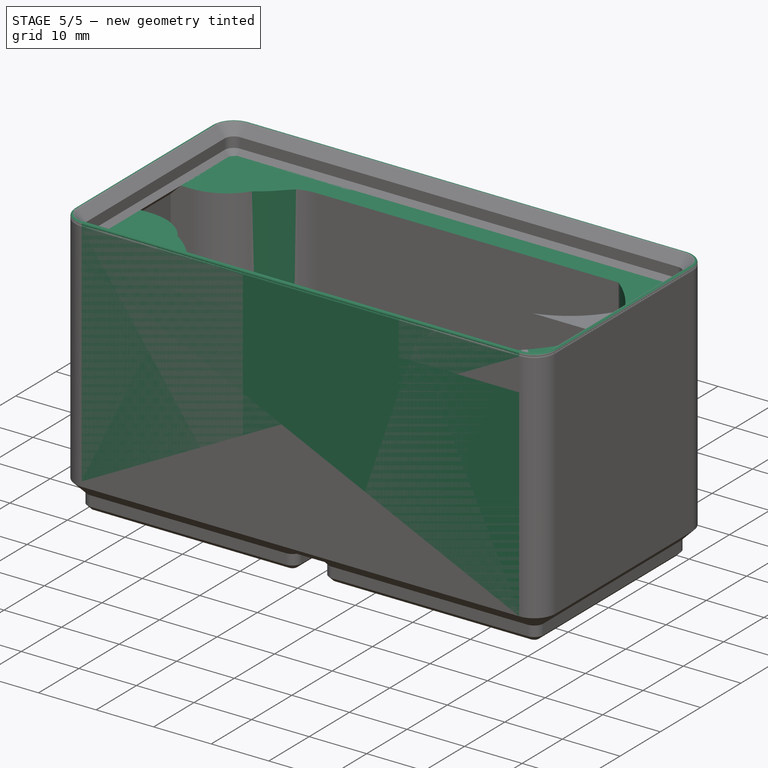
[diagram: stage 5 of 5 — iso view after this stage's code; geometry added in this stage tinted green]
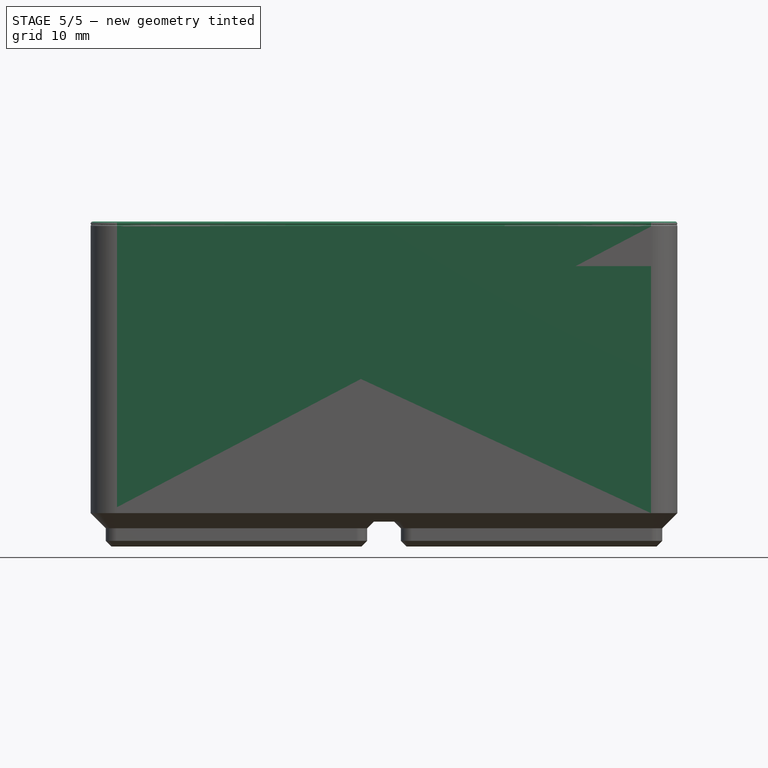
[diagram: stage 5 of 5 — front view after this stage's code; geometry added in this stage tinted green]
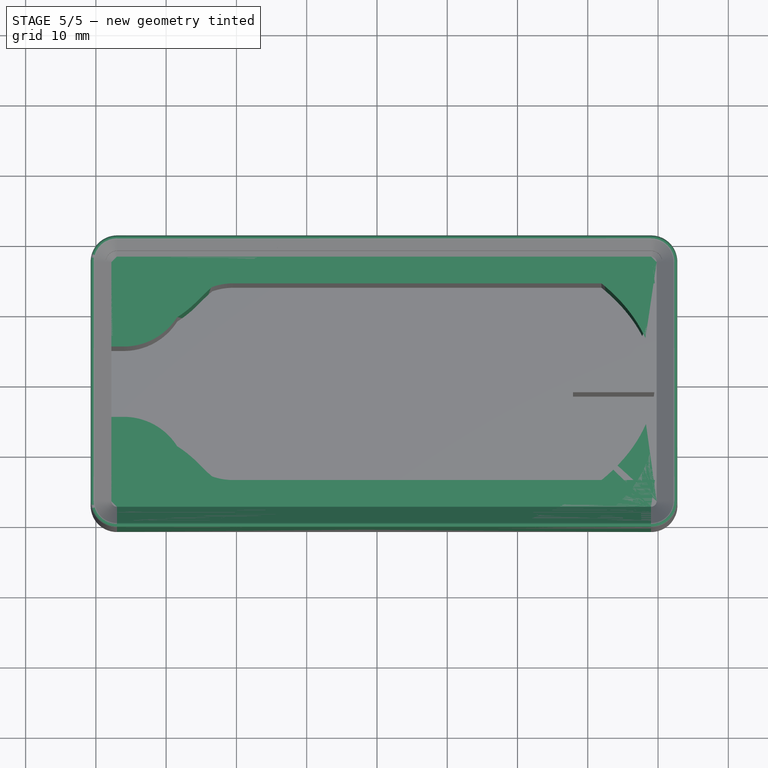
[diagram: stage 5 of 5 — top view after this stage's code; geometry added in this stage tinted green]
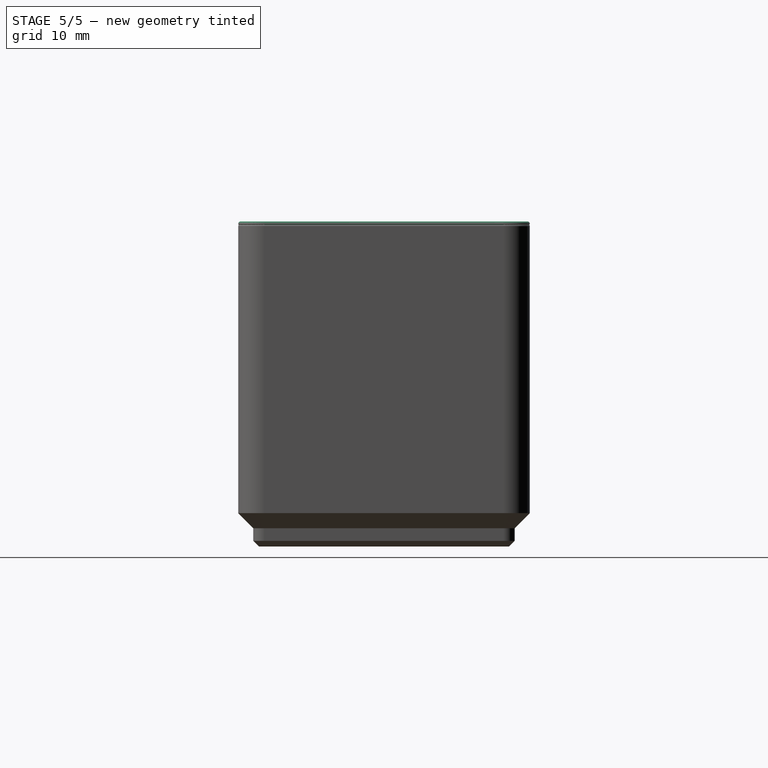
[diagram: stage 5 of 5 — right view after this stage's code; geometry added in this stage tinted green]
FEATURE [PartDesign::Body] Body001  label="BinStackingLipPart"
  AutoGroupSolids = false
  ClaimAllChildren = false
  ExportMode = 0
  Group = -> [Sketch005,AdditivePipe001]
  InvalidShape = false
  Origin = -> Origin001
  Tip = -> AdditivePipe001
  TreeRank = 0
  ValidateShape = false
  _ExportChildren = -> [AdditivePipe001]
  _GroupVersion = 1
FEATURE [PartDesign::AdditivePipe] AdditivePipe002
  AddSubType = 0
  AuxilleryCurvelinear = true
  AuxillerySpineTangent = false
  Binormal = (0,0,0)
  ClaimChildren = false
  Fit = 0
  FitJoin = 0
  InnerFit = 0
  InnerFitJoin = 0
  InvalidShape = false
  Mode = 0
  MoveProfile = false
  NewSolid = false
  Placement = pos=(0,0,0) rot=(1,0,0;1.5708rad)
  Profile = -> Sketch006
  Refine = true
  RotateProfile = false
  Spine = -> Sketch004
  SpineTangent = false
  Suppress = false
  Transformation = 0
  Transition = 0
  TreeRank = 0
  ValidateShape = false
  _ProfileBasedVersion = 0
FEATURE [PartDesign::Body] Body003  label="FloorPart"
  AutoGroupSolids = false
  ClaimAllChildren = false
  ExportMode = 0
  Group = -> [Binder,Pad,MultiTransform002,LinearPattern005,LinearPattern006]
  InvalidShape = false
  Origin = -> Origin003
  Tip = -> MultiTransform002
  TreeRank = 0
  ValidateShape = false
  _ExportChildren = -> [Pad,MultiTransform002]
  _GroupVersion = 1
FEATURE [PartDesign::SubShapeBinder] Reference005  label="Reference005(BinBaseConnectorPart)..."
  BindCopyOnChange = 0
  BindMode = 0
  ClaimChildren = false
  Context = -> Group008 [Body010.Boolean.Reference005.]
  EdgeTolerance = 1e-06
  FillStyle = 0
  Fuse = true
  InvalidShape = false
  MakeFace = true
  MergeEdges = true
  OffsetFill = false
  OffsetIntersection = false
  OffsetJoinType = 0
  OffsetOpenResult = false
  Outline = false
  PartialLoad = false
  Relative = true
  SplitEdges = false
  Support = -> [Body004,Reference006]
  TightBound = false
  TreeRank = 140
  ValidateShape = false
  _Version = 8
FEATURE [PartDesign::SubShapeBinder] Reference006  label="Reference006(FloorPart)"
  BindCopyOnChange = 0
  BindMode = 0
  ClaimChildren = false
  Context = -> Group008 [Body010.Boolean.Reference006.]
  EdgeTolerance = 1e-06
  FillStyle = 0
  Fuse = true
  InvalidShape = false
  MakeFace = true
  MergeEdges = true
  OffsetFill = false
  OffsetIntersection = false
  OffsetJoinType = 0
  OffsetOpenResult = false
  Outline = false
  PartialLoad = false
  Relative = true
  SplitEdges = false
  Support = -> [Body003]
  TightBound = false
  TreeRank = 141
  ValidateShape = false
  _Version = 8
FEATURE [PartDesign::SubShapeBinder] Reference007  label="Reference007(BinStackingLipPart)..."
  BindCopyOnChange = 0
  BindMode = 0
  ClaimChildren = false
  Context = -> Group008 [Body010.Boolean.Reference007.]
  EdgeTolerance = 1e-06
  FillStyle = 0
  Fuse = true
  InvalidShape = false
  MakeFace = true
  MergeEdges = true
  OffsetFill = false
  OffsetIntersection = false
  OffsetJoinType = 0
  OffsetOpenResult = false
  Outline = false
  PartialLoad = false
  Relative = true
  SplitEdges = false
  Support = -> [Body001,Reference006]
  TightBound = false
  TreeRank = 142
  ValidateShape = false
  _Version = 8
FEATURE [PartDesign::SubShapeBinder] Reference008  label="Reference008(BinBasePart)"
  BindCopyOnChange = 0
  BindMode = 0
  ClaimChildren = false
  Context = -> Group008 [Body011.Boolean002.Reference008.]
  EdgeTolerance = 1e-06
  FillStyle = 0
  Fuse = true
  InvalidShape = false
  MakeFace = true
  MergeEdges = true
  OffsetFill = false
  OffsetIntersection = false
  OffsetJoinType = 0
  OffsetOpenResult = false
  Outline = false
  PartialLoad = false
  Relative = true
  SplitEdges = false
  Support = -> [Body]
  TightBound = false
  TreeRank = 146
  ValidateShape = false
  _Version = 8
FEATURE [PartDesign::SubShapeBinder] Reference009  label="Reference009(BinBaseConnectorPart)"
  BindCopyOnChange = 0
  BindMode = 0
  ClaimChildren = false
  Context = -> Group008 [Body011.Boolean002.Reference009.]
  EdgeTolerance = 1e-06
  FillStyle = 0
  Fuse = true
  InvalidShape = false
  MakeFace = true
  MergeEdges = true
  OffsetFill = false
  OffsetIntersection = false
  OffsetJoinType = 0
  OffsetOpenResult = false
  Outline = false
  PartialLoad = false
  Relative = true
  SplitEdges = false
  Support = -> [Body004]
  TightBound = false
  TreeRank = 147
  ValidateShape = false
  _Version = 8
FEATURE [PartDesign::SubShapeBinder] Reference010  label="Reference010(FloorPart)"
  BindCopyOnChange = 0
  BindMode = 0
  ClaimChildren = false
  Context = -> Group008 [Body011.Boolean002.Reference010.]
  EdgeTolerance = 1e-06
  FillStyle = 0
  Fuse = true
  InvalidShape = false
  MakeFace = true
  MergeEdges = true
  OffsetFill = false
  OffsetIntersection = false
  OffsetJoinType = 0
  OffsetOpenResult = false
  Outline = false
  PartialLoad = false
  Relative = true
  SplitEdges = false
  Support = -> [Body003]
  TightBound = false
  TreeRank = 148
  ValidateShape = false
  _Version = 8
FEATURE [PartDesign::SubShapeBinder] Reference011  label="Reference011(BinStackingLipLightPart)"
  BindCopyOnChange = 0
  BindMode = 0
  ClaimChildren = false
  Context = -> Group008 [Body011.Boolean002.Reference011.]
  EdgeTolerance = 1e-06
  FillStyle = 0
  Fuse = true
  InvalidShape = false
  MakeFace = true
  MergeEdges = true
  OffsetFill = false
  OffsetIntersection = false
  OffsetJoinType = 0
  OffsetOpenResult = false
  Outline = false
  PartialLoad = false
  Relative = true
  SplitEdges = false
  Support = -> [Body002]
  TightBound = false
  TreeRank = 149
  ValidateShape = false
  _Version = 8
FEATURE [PartDesign::Boolean] Boolean002
  ClaimAllChildren = false
  ExportMode = 0
  Group = -> [Reference008,Reference009,Reference010,Reference011]
  InvalidShape = false
  NewSolid = false
  Refine = true
  Suppress = false
  TreeRank = 145
  Type = 0
  ValidateShape = true
  _ExportChildren = -> [Reference008,Reference009,Reference010,Reference011]
  _GroupVersion = 1
FEATURE [PartDesign::Body] Body015  label="OpenBinFrontCutPart"
  AutoGroupSolids = false
  ClaimAllChildren = false
  ExportMode = 0
  Group = -> [Sketch013,Import004,Sketch014,Sketch015,Import005,Loft001,Sketch017]
  InvalidShape = false
  Origin = -> Origin015
  Tip = -> Loft001
  TreeRank = 221
  ValidateShape = false
  _ExportChildren = -> [Import004,Import005,Loft001]
  _GroupVersion = 1
FEATURE [PartDesign::SubShapeBinder] Reference017  label="Reference017(CompletedBin)"
  BindCopyOnChange = 0
  BindMode = 0
  ClaimChildren = false
  Context = -> Group009 [Body016.Boolean004.Reference017.]
  EdgeTolerance = 1e-06
  FillStyle = 0
  Fuse = false
  InvalidShape = false
  MakeFace = true
  MergeEdges = true
  OffsetFill = false
  OffsetIntersection = false
  OffsetJoinType = 0
  OffsetOpenResult = false
  Outline = false
  PartialLoad = false
  Relative = true
  SplitEdges = false
  Support = -> [Body010]
  TightBound = false
  TreeRank = 251
  ValidateShape = false
  _Version = 8
FEATURE [Sketcher::SketchObject] Sketch018  label="InnerEdgeSketch"
  ArcFitTolerance = 1e-06
  AttachmentOffset = pos=(0,0,5.95) rot=(0,0,1;0rad)
  AttachmentSupport = -> [XY_Plane014]
  ExternalBSplineMaxDegree = 5
  ExternalBSplineTolerance = 0.0001
  ExternalGeometry = -> [Import004]
  FullyConstrained = true
  InternalTolerance = 1e-06
  InvalidShape = false
  MakeInternals = false
  MapMode = 5
  Placement = pos=(0,0,5.95) rot=(0,0,1;0rad)
  Support = -> [XY_Plane014]
  TreeRank = 254
  ValidateShape = false
  expr: AttachmentOffset.Base.z = <<BinBaseConnectorMasterSketch>>.Placement.Base.z + <<Params>>.WallThickless
  expr: Constraints[11] = <<Params>>.WallThickless
  expr: Constraints[12] = <<Params>>.WallThickless
  expr: Constraints[17] = <<Params>>.WallThickless
  sketch-geometry (8):
    g0: LineSegment StartX=-17 StartY=19.55 StartZ=0 EndX=59 EndY=19.55 EndZ=0
    g1: LineSegment StartX=61.55 StartY=17 StartZ=0 EndX=61.55 EndY=-17 EndZ=0
    g2: LineSegment StartX=59 StartY=-19.55 StartZ=0 EndX=-17 EndY=-19.55 EndZ=0
    g3: LineSegment StartX=-19.55 StartY=-17 StartZ=0 EndX=-19.55 EndY=17 EndZ=0
    g4: ArcOfCircle CenterX=59 CenterY=17 CenterZ=0 NormalX=0 NormalY=0 NormalZ=1 AngleXU=0 Radius=2.55 StartAngle=0 EndAngle=1.5708
    g5: ArcOfCircle CenterX=59 CenterY=-17 CenterZ=0 NormalX=0 NormalY=0 NormalZ=1 AngleXU=0 Radius=2.55 StartAngle=4.71239 EndAngle=6.28319
    g6: ArcOfCircle CenterX=-17 CenterY=17 CenterZ=0 NormalX=0 NormalY=0 NormalZ=1 AngleXU=0 Radius=2.55 StartAngle=1.5708 EndAngle=3.14159
    g7: ArcOfCircle CenterX=-17 CenterY=-17 CenterZ=0 NormalX=0 NormalY=0 NormalZ=1 AngleXU=0 Radius=2.55 StartAngle=3.14159 EndAngle=4.71239
  constraints (20):
    c: Horizontal(g0)
    c: Horizontal(g2)
    c: Vertical(g1)
    c: Vertical(g3)
    c: Tangent(g0,g4) = 1.5708
    c: Tangent(g1,g4) = 1.5708
    c: Tangent(g1,g5) = 1.5708
    c: Tangent(g2,g5) = 1.5708
    c: Equal(g5,g4)
    c: Vertical(g5,g-4)
    c: Horizontal(g5,g-3)
    c: DistanceX(g1,g-3) = 1.2
    c: DistanceY(g0,g-5) = 1.2
    c: Tangent(g3,g6) = 1.5708
    c: Tangent(g0,g6) = 1.5708
    c: Tangent(g3,g7) = 1.5708
    c: Tangent(g2,g7) = 1.5708
    c: DistanceX(g-6,g3) = 1.2
    c: Horizontal(g3,g1)
    c: Horizontal(g3,g1)
FEATURE [App::DocumentObjectGroup] Group002  label="BinBaseMasterSketches"
  ClaimAllChildren = true
  ExportMode = 1
  Group = -> [Sketch,Sketch001,Sketch007,Sketch008,Sketch018]
  TreeRank = 0
  _GroupVersion = 1
FEATURE [App::DocumentObjectGroup] Group001  label="MasterSketches"
  ClaimAllChildren = true
  ExportMode = 1
  Group = -> [Group002,Group004]
  TreeRank = 0
  _GroupVersion = 1
FEATURE [Sketcher::SketchObject] Sketch019  label="SpoonCutSketch"
  ArcFitTolerance = 1e-06
  ExternalBSplineMaxDegree = 5
  ExternalBSplineTolerance = 0.0001
  ExternalGeometry = -> [Sketch018]
  FullyConstrained = true
  InternalTolerance = 1e-06
  InvalidShape = false
  MakeInternals = false
  Placement = pos=(0,0,5.95) rot=(0,0,1;0rad)
  TreeRank = 255
  ValidateShape = false
  expr: Placement.Base.z = <<BinBaseConnectorMasterSketch>>.Placement.Base.z + <<Params>>.WallThickless
  expr: Constraints[22] = <<Params>>.SpoonCenterY
  expr: Constraints[24] = <<Params>>.WallThickless
  expr: Constraints[25] = <<Params>>.SpoonTopSpace + <<Params>>.WallThickless
  expr: Constraints[3] = <<Params>>.WallThickless + 0.1
  expr: Constraints[4] = <<Params>>.SpoonNeck
  expr: Constraints[5] = <<Params>>.SpoonBowlX
  expr: Constraints[7] = <<Params>>.SpoonBowlY
  sketch-geometry (17):
    g0: LineSegment StartX=-20.85 StartY=6.5 StartZ=0 EndX=-17.6033 EndY=6.5 EndZ=0
    g1: LineSegment StartX=-17.6033 StartY=-6.5 StartZ=0 EndX=-20.85 EndY=-6.5 EndZ=0
    g2: LineSegment StartX=-20.85 StartY=6.5 StartZ=0 EndX=-20.85 EndY=-6.5 EndZ=0
    g3: LineSegment [constr] StartX=59.55 StartY=-1.4e-15 StartZ=0 EndX=-10.45 EndY=-1.4e-15 EndZ=0
    g4: LineSegment [constr] StartX=24.55 StartY=22.5 StartZ=0 EndX=24.55 EndY=-22.5 EndZ=0
    g5: ArcOfEllipse CenterX=24.55 CenterY=-2.4e-15 CenterZ=0 NormalX=0 NormalY=0 NormalZ=1 MajorRadius=35 MinorRadius=22.5 AngleXU=0 StartAngle=3.69222 EndAngle=8.87415
    g6: LineSegment [constr] StartX=59.55 StartY=-1.4e-15 StartZ=0 EndX=-10.45 EndY=-3.4e-15 EndZ=0
    g7: LineSegment [constr] StartX=24.55 StartY=22.5 StartZ=0 EndX=24.55 EndY=-22.5 EndZ=0
    g8: GeomPoint [constr] X=51.3595 Y=-1.6e-15 Z=0
    g9: GeomPoint [constr] X=-2.25951 Y=-3.2e-15 Z=0
    g10: ArcOfCircle CenterX=-17.6033 CenterY=-23.545 CenterZ=0 NormalX=0 NormalY=0 NormalZ=1 AngleXU=0 Radius=17.045 StartAngle=0.762418 EndAngle=1.5708
    g11: GeomPoint [constr] X=-21 Y=-21 Z=0
    g12: GeomPoint [constr] X=62.75 Y=0 Z=0
    g13: ArcOfCircle CenterX=-17.6033 CenterY=23.545 CenterZ=0 NormalX=0 NormalY=0 NormalZ=1 AngleXU=0 Radius=17.045 StartAngle=4.71239 EndAngle=5.52077
    g14: ArcOfCircle [constr] CenterX=7.04956 CenterY=0 CenterZ=0 NormalX=0 NormalY=0 NormalZ=1 AngleXU=0 Radius=17.045 StartAngle=2.37918 EndAngle=3.90401
    g15: GeomPoint [constr] X=-5.27684 Y=-11.7725 Z=0
    g16: GeomPoint [constr] X=-5.27684 Y=-11.7725 Z=0
  constraints (35):
    c: Horizontal(g0)
    c: Coincident(g2,g0)
    c: Coincident(g2,g1)
    c: DistanceX(g0,g-4) = 1.3
    c: DistanceY(g1,g0) = 13
    c: DistanceX(g3,g3) = 70
    c: Vertical(g3,g-3)
    c: DistanceY(g4,g4) = 45
    c: Symmetric(g3,g3,g4)
    c: InternalAlignment(g6-g9 -> g5) x4
    c: Coincident(g7,g4)
    c: Coincident(g7,g4)
    c: Tangent(g10,g1) = -1.5708
    c: Tangent(g5,g10) = 1.5708
    c: Coincident(g6,g3)
    c: Horizontal(g3)
    c: Symmetric(g0,g1,g3)
    c: DistanceX(g11) = -21
    c: DistanceY(g11) = -21
    c: DistanceY(g11,g3) = 21
    c: PointOnObject(g12,g-1)
    c: DistanceX(g-3,g12) = 1.2
    c: DistanceX(g3,g12) = 3.2
    c: Tangent(g13,g0) = -1.5708
    c: Tangent(g13,g5) = 1.5708
    c: Horizontal(g1)
    c: Equal(g13,g10)
    c: Coincident(g14,g13)
    c: Coincident(g14,g10)
    c: PointOnObject(g15,g5)
    c: PointOnObject(g15,g14)
    c: Tangent(g5,g14,g15) = -1.5708
    c: PointOnObject(g16,g5)
    c: Tangent(g5,g14,g16) = -1.5708
    c: Equal(g13,g14)
FEATURE [PartDesign::Pad] Pad004
  AddSubType = 0
  AlongSketchNormal = false
  AutoTaperInnerAngle = true
  CheckUpToFaceLimits = true
  ClaimChildren = false
  Direction = (0,0,1)
  Fit = 0
  FitJoin = 0
  InnerFit = 0
  InnerFitJoin = 0
  InvalidShape = false
  Length = 42
  Length2 = 10
  Linearize = true
  NewSolid = false
  Profile = -> Sketch019
  ReferenceAxis = -> Sketch019 [N_Axis]
  Refine = true
  Suppress = false
  TaperInnerAngle = 0
  TaperInnerAngleRev = 0
  TreeRank = 267
  Type = 0
  ValidateShape = false
  _ProfileBasedVersion = 1
  expr: Length = <<Params>>.HeightUnits_MM
FEATURE [PartDesign::Body] Body017  label="SpoonBinCutPartBody"
  AutoGroupSolids = false
  ClaimAllChildren = false
  ExportMode = 0
  Group = -> [Sketch019,Pad004]
  InvalidShape = false
  Origin = -> Origin017
  Tip = -> Pad004
  TreeRank = 266
  ValidateShape = false
  _ExportChildren = -> [Pad004]
  _GroupVersion = 1
FEATURE [PartDesign::SubShapeBinder] Reference019  label="Reference019(CompletedFilledBin)"
  BindCopyOnChange = 0
  BindMode = 0
  ClaimChildren = false
  Context = -> Group012 [Body018.Boolean005.Reference019.]
  EdgeTolerance = 1e-06
  FillStyle = 0
  Fuse = true
  InvalidShape = false
  MakeFace = true
  MergeEdges = true
  OffsetFill = false
  OffsetIntersection = false
  OffsetJoinType = 0
  OffsetOpenResult = false
  Outline = false
  PartialLoad = false
  Relative = true
  SplitEdges = false
  Support = -> [Body014]
  TightBound = false
  TreeRank = 280
  ValidateShape = false
  _Version = 8
FEATURE [PartDesign::SubShapeBinder] Reference020  label="Reference020(SpoonBinCutPartBody)"
  BindCopyOnChange = 0
  BindMode = 0
  ClaimChildren = false
  Context = -> Group012 [Body018.Boolean005.Reference020.]
  EdgeTolerance = 1e-06
  FillStyle = 0
  Fuse = true
  InvalidShape = false
  MakeFace = true
  MergeEdges = true
  OffsetFill = false
  OffsetIntersection = false
  OffsetJoinType = 0
  OffsetOpenResult = false
  Outline = false
  PartialLoad = false
  Relative = true
  SplitEdges = false
  Support = -> [Body017]
  TightBound = false
  TreeRank = 281
  ValidateShape = false
  _Version = 8
FEATURE [PartDesign::Boolean] Boolean005
  ClaimAllChildren = false
  ExportMode = 0
  Group = -> [Reference019,Reference020]
  InvalidShape = false
  NewSolid = false
  Refine = true
  Suppress = false
  TreeRank = 279
  Type = 1
  ValidateShape = false
  _ExportChildren = -> [Reference019,Reference020]
  _GroupVersion = 1
FEATURE [PartDesign::Body] Body019  label="ForkBinCutPartBody"
  AutoGroupSolids = false
  ClaimAllChildren = false
  ExportMode = 0
  Group = -> [Sketch020,Pad005]
  InvalidShape = false
  Origin = -> Origin019
  Tip = -> Pad005
  TreeRank = 292
  ValidateShape = false
  _ExportChildren = -> [Pad005]
  _GroupVersion = 1
FEATURE [PartDesign::SubShapeBinder] Reference021  label="Reference021(CompletedFilledBin)"
  BindCopyOnChange = 0
  BindMode = 0
  ClaimChildren = false
  Context = -> Group012 [Body020.Boolean006.Reference021.]
  EdgeTolerance = 1e-06
  FillStyle = 0
  Fuse = true
  InvalidShape = false
  MakeFace = true
  MergeEdges = true
  OffsetFill = false
  OffsetIntersection = false
  OffsetJoinType = 0
  OffsetOpenResult = false
  Outline = false
  PartialLoad = false
  Relative = true
  SplitEdges = false
  Support = -> [Body014]
  TightBound = false
  TreeRank = 305
  ValidateShape = false
  _Version = 8
FEATURE [PartDesign::SubShapeBinder] Reference022  label="Reference022(ForkBinCutPartBody)"
  BindCopyOnChange = 0
  BindMode = 0
  ClaimChildren = false
  Context = -> Group012 [Body020.Boolean006.Reference022.]
  EdgeTolerance = 1e-06
  FillStyle = 0
  Fuse = true
  InvalidShape = false
  MakeFace = true
  MergeEdges = true
  OffsetFill = false
  OffsetIntersection = false
  OffsetJoinType = 0
  OffsetOpenResult = false
  Outline = false
  PartialLoad = false
  Relative = true
  SplitEdges = false
  Support = -> [Body019]
  TightBound = false
  TreeRank = 306
  ValidateShape = false
  _Version = 8
FEATURE [PartDesign::Boolean] Boolean006
  ClaimAllChildren = false
  ExportMode = 0
  Group = -> [Reference021,Reference022]
  InvalidShape = false
  NewSolid = false
  Refine = true
  Suppress = false
  TreeRank = 304
  Type = 1
  ValidateShape = false
  _ExportChildren = -> [Reference021,Reference022]
  _GroupVersion = 1
FEATURE [PartDesign::Body] Body  label="BinBasePart"
  AutoGroupSolids = false
  ClaimAllChildren = false
  ExportMode = 0
  Group = -> [Box,Binder006,Boolean009,Thickness,MultiTransform003,LinearPattern012,LinearPattern013]
  InvalidShape = false
  Origin = -> Origin
  Tip = -> MultiTransform003
  TreeRank = 0
  ValidateShape = false
  _ExportChildren = -> [Box,Binder006,Boolean009,Thickness,MultiTransform003]
  _GroupVersion = 1
FEATURE [App::DocumentObjectGroup] Group003  label="BinBaseParts"
  ClaimAllChildren = true
  ExportMode = 1
  Group = -> [Body025,Body,Body012,Body004,Body008,Body003]
  TreeRank = 0
  _GroupVersion = 1
FEATURE [App::DocumentObjectGroup] Group  label="Parts"
  ClaimAllChildren = true
  ExportMode = 1
  Group = -> [Group003,Group005,Group010,Group011]
  TreeRank = 0
  _GroupVersion = 1
FEATURE [PartDesign::SubShapeBinder] Reference018  label="Reference018(OpenBinFrontCutPart)"
  BindCopyOnChange = 0
  BindMode = 0
  ClaimChildren = false
  Context = -> Group009 [Body016.Boolean004.Reference018.]
  EdgeTolerance = 1e-06
  FillStyle = 0
  Fuse = true
  InvalidShape = false
  MakeFace = true
  MergeEdges = true
  OffsetFill = false
  OffsetIntersection = false
  OffsetJoinType = 0
  OffsetOpenResult = false
  Outline = false
  PartialLoad = false
  Relative = true
  SplitEdges = false
  Support = -> [Body015]
  TightBound = false
  TreeRank = 409
  ValidateShape = false
  _Version = 8
FEATURE [PartDesign::Boolean] Boolean004
  ClaimAllChildren = false
  ExportMode = 0
  Group = -> [Reference017,Reference018]
  InvalidShape = false
  NewSolid = false
  Refine = true
  Suppress = false
  TreeRank = 252
  Type = 1
  ValidateShape = false
  _ExportChildren = -> [Reference017,Reference018]
  _GroupVersion = 1
FEATURE [PartDesign::Body] Body016  label="FrontOpenBin"
  AutoGroupSolids = false
  ClaimAllChildren = false
  ExportMode = 0
  Group = -> [Boolean004]
  InvalidShape = false
  Origin = -> Origin016
  Tip = -> Boolean004
  TreeRank = 242
  ValidateShape = false
  _ExportChildren = -> [Boolean004]
  _GroupVersion = 1
FEATURE [App::DocumentObjectGroup] Group009  label="OpenBins"
  ClaimAllChildren = true
  ExportMode = 1
  Group = -> [Body016,Body024]
  TreeRank = 211
  _GroupVersion = 1
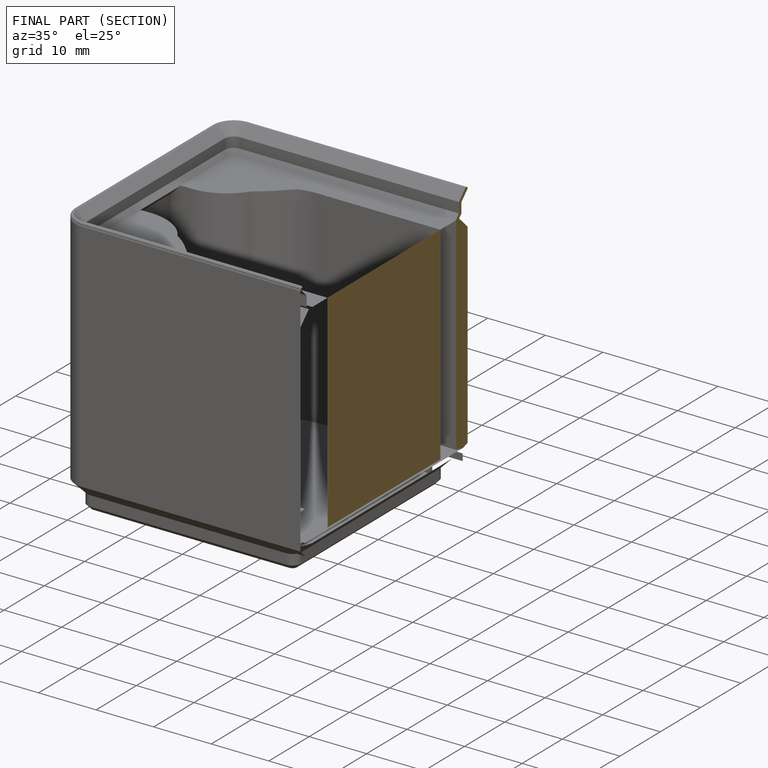
[diagram: finished part — half-section view (interior)]
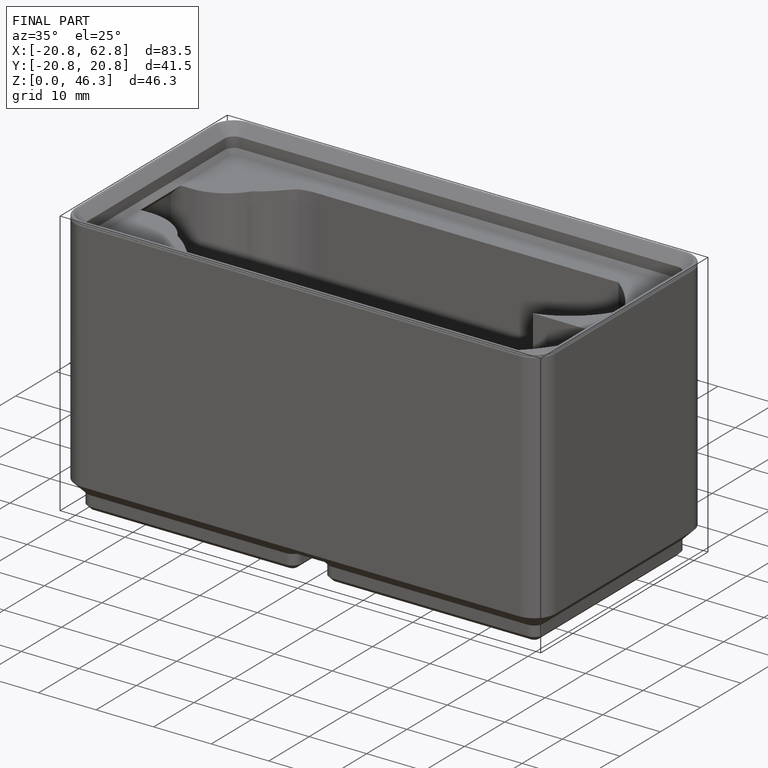
[diagram: finished part — iso view with bounding-box wireframe]
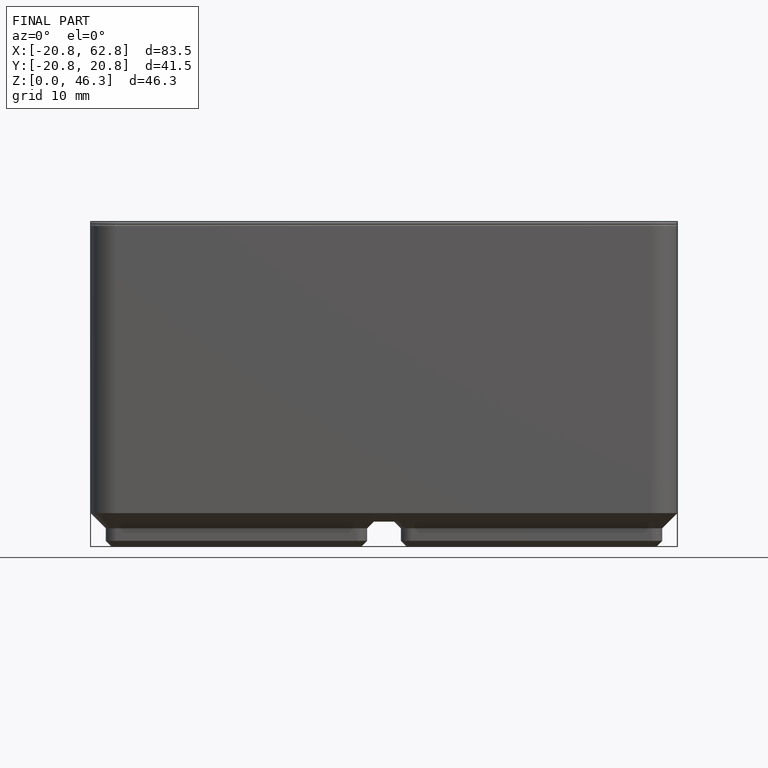
[diagram: finished part — front view with bounding-box wireframe]
